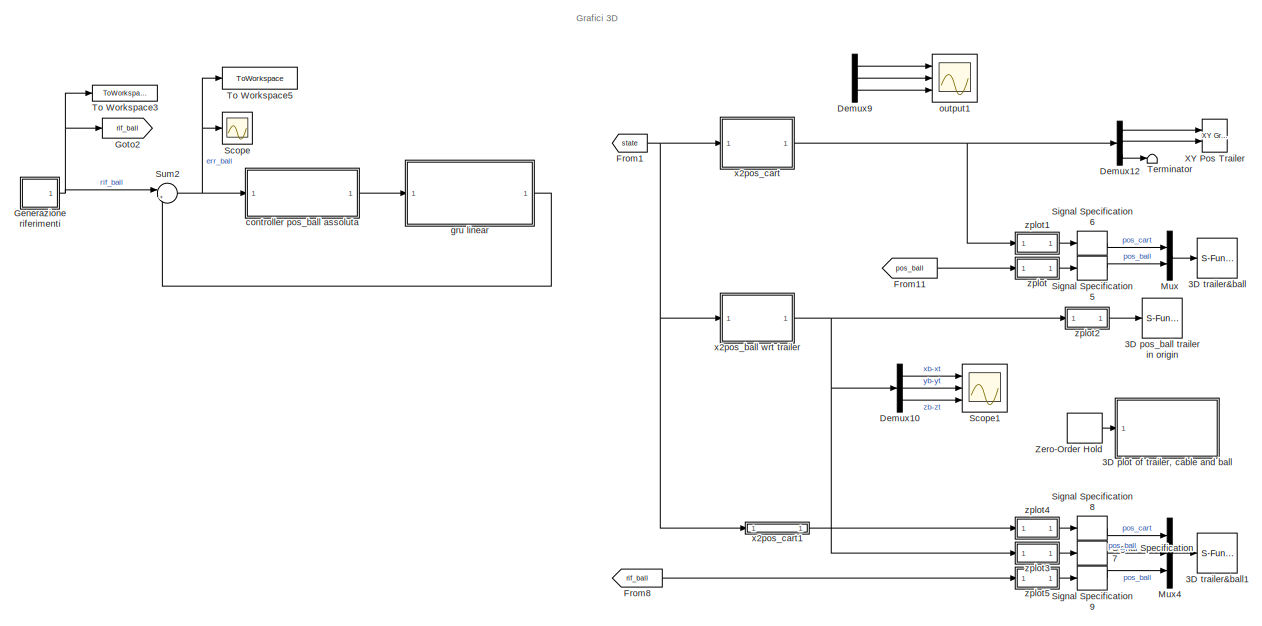
[diagram: root canvas - part 1/2, left side, full height]
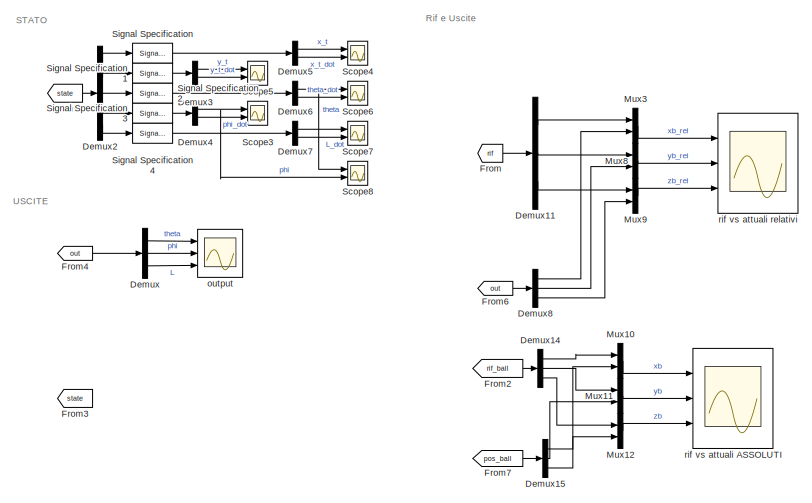
[diagram: root canvas - part 2/2, right side, full height]
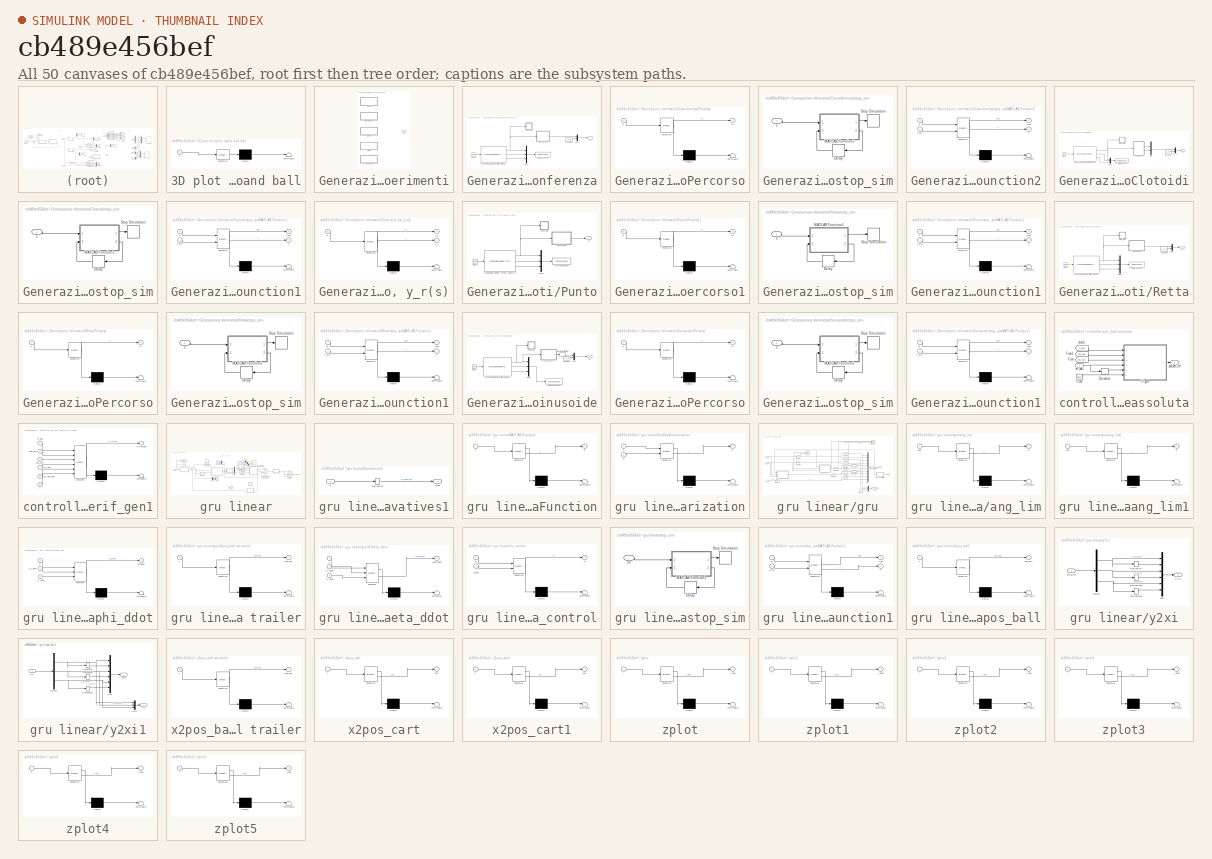
[diagram: thumbnail index - all 50 canvases of the model, root first then tree order]
MODEL slx_cb489e456bef
KIND model
CONFIG AbsTol = auto
CONFIG EnableMultiTasking = off
CONFIG FixedStep = 0.001
CONFIG InitFcn = init_gru
CONFIG MaxStep = 0.01
CONFIG MinStep = auto
CONFIG RelTol = 1e-3
CONFIG SampleTimeConstraint = Unconstrained
CONFIG Solver = FixedStepAuto
CONFIG SolverName = FixedStepAuto
CONFIG StartTime = 0.0
CONFIG StopFcn = stop_gru
CONFIG StopTime = Inf
BLOCK [SubSystem] 3D plot of trailer, cable and ball
  Commented = on
  ErrorFcn = Stateflow.Translate.translate
  PermitHierarchicalResolution = ExplicitOnly
  Ports = [1]
  RequestExecContextInheritance = off
  SFBlockType = MATLAB Function
  TreatAsAtomicUnit = on
BLOCK [Demux] 3D plot of trailer, cable and ball/ Demux 
  Outputs = 1
  Ports = [1, 1]
BLOCK [S-Function] 3D plot of trailer, cable and ball/ SFunction 
  EnableBusSupport = on
  FunctionName = sf_sfun
  Parameters = z_t
  PortCounts = [1 1]
  Ports = [1, 1]
  SFcnIsStateOwnerBlock = off
  SFunctionDeploymentMode = off
  Tag = Stateflow S-Function 22
BLOCK [Terminator] 3D plot of trailer, cable and ball/ Terminator 
BLOCK [Inport] 3D plot of trailer, cable and ball/x
BLOCK [S-Function] 3D pos_ball trailer in origin
  CopyFcn = if exist('sfun3d','file'), sfun3d([],[],[],'CopyBlock'); end
  DeleteFcn = if exist('sfun3d','file'), sfun3d([],[],[],'DeleteBlock'); end
  EnableBusSupport = off
  FunctionName = sfun3d
  LoadFcn = if exist('sfun3d','file'), sfun3d([],[],[],'LoadBlock'); end
  NameChangeFcn = if exist('sfun3d','file'), sfun3d([],[],[],'NameChange'); end
  Parameters = ax,T,np,cp,gd,ls,mk,mx,hd,tb
  Ports = [1]
  SFcnIsStateOwnerBlock = off
  SFunctionDeploymentMode = off
BLOCK [S-Function] 3D trailer&ball
  CopyFcn = if exist('sfun3d','file'), sfun3d([],[],[],'CopyBlock'); end
  DeleteFcn = if exist('sfun3d','file'), sfun3d([],[],[],'DeleteBlock'); end
  EnableBusSupport = off
  FunctionName = sfun3d
  LoadFcn = if exist('sfun3d','file'), sfun3d([],[],[],'LoadBlock'); end
  NameChangeFcn = if exist('sfun3d','file'), sfun3d([],[],[],'NameChange'); end
  Parameters = ax,T,np,cp,gd,ls,mk,mx,hd,tb
  Ports = [1]
  SFcnIsStateOwnerBlock = off
  SFunctionDeploymentMode = off
BLOCK [S-Function] 3D trailer&ball1
  CopyFcn = if exist('sfun3d','file'), sfun3d([],[],[],'CopyBlock'); end
  DeleteFcn = if exist('sfun3d','file'), sfun3d([],[],[],'DeleteBlock'); end
  EnableBusSupport = off
  FunctionName = sfun3d
  LoadFcn = if exist('sfun3d','file'), sfun3d([],[],[],'LoadBlock'); end
  NameChangeFcn = if exist('sfun3d','file'), sfun3d([],[],[],'NameChange'); end
  Parameters = ax,T,np,cp,gd,ls,mk,mx,hd,tb
  Ports = [1]
  SFcnIsStateOwnerBlock = off
  SFunctionDeploymentMode = off
BLOCK [Demux] Demux
  Outputs = 3
  Ports = [1, 3]
BLOCK [Demux] Demux10
  Outputs = 3
  Ports = [1, 3]
BLOCK [Demux] Demux11
  Outputs = 3
  Ports = [1, 3]
BLOCK [Demux] Demux12
  Outputs = 3
  Ports = [1, 3]
BLOCK [Demux] Demux14
  Outputs = 3
  Ports = [1, 3]
BLOCK [Demux] Demux15
  Outputs = 3
  Ports = [1, 3]
BLOCK [Demux] Demux2
  Outputs = 5
  Ports = [1, 5]
BLOCK [Demux] Demux3
  Outputs = 2
  Ports = [1, 2]
BLOCK [Demux] Demux4
  Outputs = 2
  Ports = [1, 2]
BLOCK [Demux] Demux5
  Outputs = 2
  Ports = [1, 2]
BLOCK [Demux] Demux6
  Outputs = 2
  Ports = [1, 2]
BLOCK [Demux] Demux7
  Outputs = 2
  Ports = [1, 2]
BLOCK [Demux] Demux8
  Outputs = 3
  Ports = [1, 3]
BLOCK [Demux] Demux9
  Outputs = 3
  Ports = [1, 3]
BLOCK [From] From
  GotoTag = rif
  TagVisibility = global
BLOCK [From] From1
  GotoTag = state
  TagVisibility = global
BLOCK [From] From11
  GotoTag = pos_ball
  TagVisibility = global
BLOCK [From] From2
  GotoTag = rif_ball
  TagVisibility = global
BLOCK [From] From3
  GotoTag = state
  TagVisibility = global
BLOCK [From] From4
  GotoTag = out
  TagVisibility = global
BLOCK [From] From5
  GotoTag = state
  TagVisibility = global
BLOCK [From] From6
  GotoTag = out
  TagVisibility = global
BLOCK [From] From7
  GotoTag = pos_ball
  TagVisibility = global
BLOCK [From] From8
  GotoTag = rif_ball
  TagVisibility = global
BLOCK [SubSystem] Generazione riferimenti
  Ports = [0, 1]
  RequestExecContextInheritance = off
  Variant = on
BLOCK [SubSystem] Generazione riferimenti/Circonferenza
  Ports = [0, 1]
  RequestExecContextInheritance = off
  VariantControl = Circonferenza
BLOCK [Clock] Generazione riferimenti/Circonferenza/Clock2
BLOCK [Constant] Generazione riferimenti/Circonferenza/Constant4
  Value = z_b_rif
BLOCK [Mux] Generazione riferimenti/Circonferenza/Mux1
  DisplayOption = bar
  Inputs = 2
  Ports = [2, 1]
BLOCK [Mux] Generazione riferimenti/Circonferenza/Mux2
  DisplayOption = bar
  Inputs = 3
  Ports = [3, 1]
BLOCK [SubSystem] Generazione riferimenti/Circonferenza/Percorso
  ErrorFcn = Stateflow.Translate.translate
  PermitHierarchicalResolution = ExplicitOnly
  Ports = [1, 1]
  RequestExecContextInheritance = off
  SFBlockType = MATLAB Function
  TreatAsAtomicUnit = on
BLOCK [Demux] Generazione riferimenti/Circonferenza/Percorso/ Demux 
  Outputs = 1
  Ports = [1, 1]
BLOCK [S-Function] Generazione riferimenti/Circonferenza/Percorso/ SFunction 
  EnableBusSupport = on
  FunctionName = sf_sfun
  Parameters = centro,v_r
  PortCounts = [1 2]
  Ports = [1, 2]
  SFcnIsStateOwnerBlock = off
  SFunctionDeploymentMode = off
  Tag = Stateflow S-Function 10
BLOCK [Terminator] Generazione riferimenti/Circonferenza/Percorso/ Terminator 
BLOCK [Outport] Generazione riferimenti/Circonferenza/Percorso/rif
BLOCK [Inport] Generazione riferimenti/Circonferenza/Percorso/s
BLOCK [ToWorkspace] Generazione riferimenti/Circonferenza/To Workspace2
  FixptAsFi = on
  MaxDataPoints = inf
  Ports = [1]
  SampleTime = -1
  SaveFormat = Timeseries
  VariableName = curv_coord
BLOCK [Reference] Generazione riferimenti/Circonferenza/Trapezoidal Velocity Profile Trajectory  REF=robotcorelib/Trapezoidal Velocity Profile Trajectory
  Ports = [1, 3]
  SourceBlock = robotcorelib/Trapezoidal Velocity Profile Trajectory
  SourceProductBaseCode = NV,RO,RR
  SourceType = robotics.slcore.internal.block.TrapVelTrajSys
BLOCK [Outport] Generazione riferimenti/Circonferenza/rif
BLOCK [SubSystem] Generazione riferimenti/Circonferenza/stop_sim
  Ports = [1]
  RequestExecContextInheritance = off
BLOCK [Delay] Generazione riferimenti/Circonferenza/stop_sim/Delay
  DelayLength = 1
  InputPortMap = u0
  Ports = [1, 1]
BLOCK [SubSystem] Generazione riferimenti/Circonferenza/stop_sim/MATLAB Function2
  ErrorFcn = Stateflow.Translate.translate
  PermitHierarchicalResolution = ExplicitOnly
  Ports = [2, 2]
  RequestExecContextInheritance = off
  SFBlockType = MATLAB Function
  TreatAsAtomicUnit = on
BLOCK [Demux] Generazione riferimenti/Circonferenza/stop_sim/MATLAB Function2/ Demux 
  Outputs = 1
  Ports = [1, 1]
BLOCK [S-Function] Generazione riferimenti/Circonferenza/stop_sim/MATLAB Function2/ SFunction 
  EnableBusSupport = on
  FunctionName = sf_sfun
  Parameters = s_finale,threshold
  PortCounts = [2 3]
  Ports = [2, 3]
  SFcnIsStateOwnerBlock = off
  SFunctionDeploymentMode = off
  Tag = Stateflow S-Function 9
BLOCK [Terminator] Generazione riferimenti/Circonferenza/stop_sim/MATLAB Function2/ Terminator 
BLOCK [Outport] Generazione riferimenti/Circonferenza/stop_sim/MATLAB Function2/flag
BLOCK [Outport] Generazione riferimenti/Circonferenza/stop_sim/MATLAB Function2/n
  Port = 2
BLOCK [Inport] Generazione riferimenti/Circonferenza/stop_sim/MATLAB Function2/n_old
  Port = 2
BLOCK [Inport] Generazione riferimenti/Circonferenza/stop_sim/MATLAB Function2/s
BLOCK [Stop] Generazione riferimenti/Circonferenza/stop_sim/Stop Simulation
BLOCK [Inport] Generazione riferimenti/Circonferenza/stop_sim/s
BLOCK [SubSystem] Generazione riferimenti/Clotoidi
  Ports = [0, 1]
  RequestExecContextInheritance = off
  VariantControl = Clotoidi
BLOCK [Clock] Generazione riferimenti/Clotoidi/Clock
BLOCK [Constant] Generazione riferimenti/Clotoidi/Constant4
  Value = z_b_rif
BLOCK [Mux] Generazione riferimenti/Clotoidi/Mux
  DisplayOption = bar
  Inputs = 2
  Ports = [2, 1]
BLOCK [Mux] Generazione riferimenti/Clotoidi/Mux1
  DisplayOption = bar
  Inputs = 3
  Ports = [3, 1]
BLOCK [Mux] Generazione riferimenti/Clotoidi/Mux2
  DisplayOption = bar
  Inputs = 2
  Ports = [2, 1]
BLOCK [ToWorkspace] Generazione riferimenti/Clotoidi/To Workspace3
  FixptAsFi = on
  MaxDataPoints = inf
  Ports = [1]
  SampleTime = -1
  SaveFormat = Timeseries
  VariableName = curv_coord
BLOCK [Reference] Generazione riferimenti/Clotoidi/Trapezoidal Velocity Profile Trajectory  REF=robotcorelib/Trapezoidal Velocity Profile Trajectory
  Ports = [1, 3]
  SourceBlock = robotcorelib/Trapezoidal Velocity Profile Trajectory
  SourceProductBaseCode = NV,RO,RR
  SourceType = robotics.slcore.internal.block.TrapVelTrajSys
BLOCK [Outport] Generazione riferimenti/Clotoidi/rif
BLOCK [SubSystem] Generazione riferimenti/Clotoidi/stop_sim
  Ports = [1]
  RequestExecContextInheritance = off
BLOCK [Delay] Generazione riferimenti/Clotoidi/stop_sim/Delay
  DelayLength = 1
  InputPortMap = u0
  Ports = [1, 1]
BLOCK [SubSystem] Generazione riferimenti/Clotoidi/stop_sim/MATLAB Function1
  ErrorFcn = Stateflow.Translate.translate
  PermitHierarchicalResolution = ExplicitOnly
  Ports = [2, 2]
  RequestExecContextInheritance = off
  SFBlockType = MATLAB Function
  TreatAsAtomicUnit = on
BLOCK [Demux] Generazione riferimenti/Clotoidi/stop_sim/MATLAB Function1/ Demux 
  Outputs = 1
  Ports = [1, 1]
BLOCK [S-Function] Generazione riferimenti/Clotoidi/stop_sim/MATLAB Function1/ SFunction 
  EnableBusSupport = on
  FunctionName = sf_sfun
  Parameters = s_finale,threshold
  PortCounts = [2 3]
  Ports = [2, 3]
  SFcnIsStateOwnerBlock = off
  SFunctionDeploymentMode = off
  Tag = Stateflow S-Function 3
BLOCK [Terminator] Generazione riferimenti/Clotoidi/stop_sim/MATLAB Function1/ Terminator 
BLOCK [Outport] Generazione riferimenti/Clotoidi/stop_sim/MATLAB Function1/flag
BLOCK [Outport] Generazione riferimenti/Clotoidi/stop_sim/MATLAB Function1/n
  Port = 2
BLOCK [Inport] Generazione riferimenti/Clotoidi/stop_sim/MATLAB Function1/n_old
  Port = 2
BLOCK [Inport] Generazione riferimenti/Clotoidi/stop_sim/MATLAB Function1/s
BLOCK [Stop] Generazione riferimenti/Clotoidi/stop_sim/Stop Simulation
BLOCK [Inport] Generazione riferimenti/Clotoidi/stop_sim/s
BLOCK [SubSystem] Generazione riferimenti/Clotoidi/x_r(s), y_r(s)
  ErrorFcn = Stateflow.Translate.translate
  PermitHierarchicalResolution = ExplicitOnly
  Ports = [1, 2]
  RequestExecContextInheritance = off
  SFBlockType = MATLAB Function
  TreatAsAtomicUnit = on
BLOCK [Demux] Generazione riferimenti/Clotoidi/x_r(s), y_r(s)/ Demux 
  Outputs = 1
  Ports = [1, 1]
BLOCK [S-Function] Generazione riferimenti/Clotoidi/x_r(s), y_r(s)/ SFunction 
  EnableBusSupport = on
  FunctionName = sf_sfun
  Parameters = Lsofar,Lsofarclot,Ltot,indexclot,n_p,theta_rette,xp,yp
  PortCounts = [1 3]
  Ports = [1, 3]
  SFcnIsStateOwnerBlock = off
  SFunctionDeploymentMode = off
  Tag = Stateflow S-Function 13
BLOCK [Terminator] Generazione riferimenti/Clotoidi/x_r(s), y_r(s)/ Terminator 
BLOCK [Inport] Generazione riferimenti/Clotoidi/x_r(s), y_r(s)/s
BLOCK [Outport] Generazione riferimenti/Clotoidi/x_r(s), y_r(s)/x_r
  VectorParamsAs1DForOutWhenUnconnected = off
BLOCK [Outport] Generazione riferimenti/Clotoidi/x_r(s), y_r(s)/y_r
  Port = 2
  VectorParamsAs1DForOutWhenUnconnected = off
BLOCK [SubSystem] Generazione riferimenti/Punto
  Ports = [0, 1]
  RequestExecContextInheritance = off
  VariantControl = Punto
BLOCK [Clock] Generazione riferimenti/Punto/Clock2
BLOCK [Mux] Generazione riferimenti/Punto/Mux1
  DisplayOption = bar
  Inputs = 3
  Ports = [3, 1]
BLOCK [SubSystem] Generazione riferimenti/Punto/Percorso1
  ErrorFcn = Stateflow.Translate.translate
  PermitHierarchicalResolution = ExplicitOnly
  Ports = [1, 1]
  RequestExecContextInheritance = off
  SFBlockType = MATLAB Function
  TreatAsAtomicUnit = on
BLOCK [Demux] Generazione riferimenti/Punto/Percorso1/ Demux 
  Outputs = 1
  Ports = [1, 1]
BLOCK [S-Function] Generazione riferimenti/Punto/Percorso1/ SFunction 
  EnableBusSupport = on
  FunctionName = sf_sfun
  Parameters = dir_retta,x_b_iniziale,y_b_iniziale,z_b_iniziale
  PortCounts = [1 2]
  Ports = [1, 2]
  SFcnIsStateOwnerBlock = off
  SFunctionDeploymentMode = off
  Tag = Stateflow S-Function 28
BLOCK [Terminator] Generazione riferimenti/Punto/Percorso1/ Terminator 
BLOCK [Outport] Generazione riferimenti/Punto/Percorso1/rif
BLOCK [Inport] Generazione riferimenti/Punto/Percorso1/s
BLOCK [ToWorkspace] Generazione riferimenti/Punto/To Workspace2
  FixptAsFi = on
  MaxDataPoints = inf
  Ports = [1]
  SampleTime = -1
  SaveFormat = Timeseries
  VariableName = curv_coord1
BLOCK [Reference] Generazione riferimenti/Punto/Trapezoidal Velocity Profile Trajectory  REF=robotcorelib/Trapezoidal Velocity Profile Trajectory
  Ports = [1, 3]
  SourceBlock = robotcorelib/Trapezoidal Velocity Profile Trajectory
  SourceProductBaseCode = NV,RO,RR
  SourceType = robotics.slcore.internal.block.TrapVelTrajSys
BLOCK [Outport] Generazione riferimenti/Punto/rif
BLOCK [SubSystem] Generazione riferimenti/Punto/stop_sim
  Ports = [1]
  RequestExecContextInheritance = off
BLOCK [Delay] Generazione riferimenti/Punto/stop_sim/Delay
  DelayLength = 1
  InputPortMap = u0
  Ports = [1, 1]
BLOCK [SubSystem] Generazione riferimenti/Punto/stop_sim/MATLAB Function1
  ErrorFcn = Stateflow.Translate.translate
  PermitHierarchicalResolution = ExplicitOnly
  Ports = [2, 2]
  RequestExecContextInheritance = off
  SFBlockType = MATLAB Function
  TreatAsAtomicUnit = on
BLOCK [Demux] Generazione riferimenti/Punto/stop_sim/MATLAB Function1/ Demux 
  Outputs = 1
  Ports = [1, 1]
BLOCK [S-Function] Generazione riferimenti/Punto/stop_sim/MATLAB Function1/ SFunction 
  EnableBusSupport = on
  FunctionName = sf_sfun
  Parameters = s_finale,threshold
  PortCounts = [2 3]
  Ports = [2, 3]
  SFcnIsStateOwnerBlock = off
  SFunctionDeploymentMode = off
  Tag = Stateflow S-Function 7
BLOCK [Terminator] Generazione riferimenti/Punto/stop_sim/MATLAB Function1/ Terminator 
BLOCK [Outport] Generazione riferimenti/Punto/stop_sim/MATLAB Function1/flag
BLOCK [Outport] Generazione riferimenti/Punto/stop_sim/MATLAB Function1/n
  Port = 2
BLOCK [Inport] Generazione riferimenti/Punto/stop_sim/MATLAB Function1/n_old
  Port = 2
BLOCK [Inport] Generazione riferimenti/Punto/stop_sim/MATLAB Function1/s
BLOCK [Stop] Generazione riferimenti/Punto/stop_sim/Stop Simulation
BLOCK [Inport] Generazione riferimenti/Punto/stop_sim/s
BLOCK [SubSystem] Generazione riferimenti/Retta
  Ports = [0, 1]
  RequestExecContextInheritance = off
  VariantControl = Retta
BLOCK [Clock] Generazione riferimenti/Retta/Clock1
BLOCK [Constant] Generazione riferimenti/Retta/Constant4
  Value = z_b_rif
BLOCK [Mux] Generazione riferimenti/Retta/Mux
  DisplayOption = bar
  Inputs = 2
  Ports = [2, 1]
BLOCK [Mux] Generazione riferimenti/Retta/Mux2
  DisplayOption = bar
  Inputs = 3
  Ports = [3, 1]
BLOCK [SubSystem] Generazione riferimenti/Retta/Percorso
  ErrorFcn = Stateflow.Translate.translate
  PermitHierarchicalResolution = ExplicitOnly
  Ports = [1, 1]
  RequestExecContextInheritance = off
  SFBlockType = MATLAB Function
  TreatAsAtomicUnit = on
BLOCK [Demux] Generazione riferimenti/Retta/Percorso/ Demux 
  Outputs = 1
  Ports = [1, 1]
BLOCK [S-Function] Generazione riferimenti/Retta/Percorso/ SFunction 
  EnableBusSupport = on
  FunctionName = sf_sfun
  Parameters = dir_retta,x_b_iniziale,y_b_iniziale
  PortCounts = [1 2]
  Ports = [1, 2]
  SFcnIsStateOwnerBlock = off
  SFunctionDeploymentMode = off
  Tag = Stateflow S-Function 12
BLOCK [Terminator] Generazione riferimenti/Retta/Percorso/ Terminator 
BLOCK [Outport] Generazione riferimenti/Retta/Percorso/rif
BLOCK [Inport] Generazione riferimenti/Retta/Percorso/s
BLOCK [ToWorkspace] Generazione riferimenti/Retta/To Workspace1
  FixptAsFi = on
  MaxDataPoints = inf
  Ports = [1]
  SampleTime = -1
  SaveFormat = Timeseries
  VariableName = curv_coord
BLOCK [Reference] Generazione riferimenti/Retta/Trapezoidal Velocity Profile Trajectory  REF=robotcorelib/Trapezoidal Velocity Profile Trajectory
  Ports = [1, 3]
  SourceBlock = robotcorelib/Trapezoidal Velocity Profile Trajectory
  SourceProductBaseCode = NV,RO,RR
  SourceType = robotics.slcore.internal.block.TrapVelTrajSys
BLOCK [Outport] Generazione riferimenti/Retta/rif
BLOCK [SubSystem] Generazione riferimenti/Retta/stop_sim
  Ports = [1]
  RequestExecContextInheritance = off
BLOCK [Delay] Generazione riferimenti/Retta/stop_sim/Delay
  DelayLength = 1
  InputPortMap = u0
  Ports = [1, 1]
BLOCK [SubSystem] Generazione riferimenti/Retta/stop_sim/MATLAB Function1
  ErrorFcn = Stateflow.Translate.translate
  PermitHierarchicalResolution = ExplicitOnly
  Ports = [2, 2]
  RequestExecContextInheritance = off
  SFBlockType = MATLAB Function
  TreatAsAtomicUnit = on
BLOCK [Demux] Generazione riferimenti/Retta/stop_sim/MATLAB Function1/ Demux 
  Outputs = 1
  Ports = [1, 1]
BLOCK [S-Function] Generazione riferimenti/Retta/stop_sim/MATLAB Function1/ SFunction 
  EnableBusSupport = on
  FunctionName = sf_sfun
  Parameters = s_finale,threshold
  PortCounts = [2 3]
  Ports = [2, 3]
  SFcnIsStateOwnerBlock = off
  SFunctionDeploymentMode = off
  Tag = Stateflow S-Function 14
BLOCK [Terminator] Generazione riferimenti/Retta/stop_sim/MATLAB Function1/ Terminator 
BLOCK [Outport] Generazione riferimenti/Retta/stop_sim/MATLAB Function1/flag
BLOCK [Outport] Generazione riferimenti/Retta/stop_sim/MATLAB Function1/n
  Port = 2
BLOCK [Inport] Generazione riferimenti/Retta/stop_sim/MATLAB Function1/n_old
  Port = 2
BLOCK [Inport] Generazione riferimenti/Retta/stop_sim/MATLAB Function1/s
BLOCK [Stop] Generazione riferimenti/Retta/stop_sim/Stop Simulation
BLOCK [Inport] Generazione riferimenti/Retta/stop_sim/s
BLOCK [SubSystem] Generazione riferimenti/Sinusoide
  Ports = [0, 1]
  RequestExecContextInheritance = off
  VariantControl = Sinusoide
BLOCK [Clock] Generazione riferimenti/Sinusoide/Clock1
BLOCK [Constant] Generazione riferimenti/Sinusoide/Constant
  Value = z_b_rif
BLOCK [Mux] Generazione riferimenti/Sinusoide/Mux
  DisplayOption = bar
  Inputs = 2
  Ports = [2, 1]
BLOCK [Mux] Generazione riferimenti/Sinusoide/Mux1
  DisplayOption = bar
  Inputs = 3
  Ports = [3, 1]
BLOCK [SubSystem] Generazione riferimenti/Sinusoide/Percorso
  ErrorFcn = Stateflow.Translate.translate
  PermitHierarchicalResolution = ExplicitOnly
  Ports = [1, 1]
  RequestExecContextInheritance = off
  SFBlockType = MATLAB Function
  TreatAsAtomicUnit = on
BLOCK [Demux] Generazione riferimenti/Sinusoide/Percorso/ Demux 
  Outputs = 1
  Ports = [1, 1]
BLOCK [S-Function] Generazione riferimenti/Sinusoide/Percorso/ SFunction 
  EnableBusSupport = on
  FunctionName = sf_sfun
  Parameters = dir_retta
  PortCounts = [1 2]
  Ports = [1, 2]
  SFcnIsStateOwnerBlock = off
  SFunctionDeploymentMode = off
  Tag = Stateflow S-Function 15
BLOCK [Terminator] Generazione riferimenti/Sinusoide/Percorso/ Terminator 
BLOCK [Outport] Generazione riferimenti/Sinusoide/Percorso/rif
BLOCK [Inport] Generazione riferimenti/Sinusoide/Percorso/s
BLOCK [SignalSpecification] Generazione riferimenti/Sinusoide/Signal Specification
  Dimensions = 2
BLOCK [ToWorkspace] Generazione riferimenti/Sinusoide/To Workspace1
  FixptAsFi = on
  MaxDataPoints = inf
  Ports = [1]
  SampleTime = -1
  SaveFormat = Timeseries
  VariableName = curv_coord
BLOCK [Reference] Generazione riferimenti/Sinusoide/Trapezoidal Velocity Profile Trajectory  REF=robotcorelib/Trapezoidal Velocity Profile Trajectory
  Ports = [1, 3]
  SourceBlock = robotcorelib/Trapezoidal Velocity Profile Trajectory
  SourceProductBaseCode = NV,RO,RR
  SourceType = robotics.slcore.internal.block.TrapVelTrajSys
BLOCK [Outport] Generazione riferimenti/Sinusoide/rif
BLOCK [SubSystem] Generazione riferimenti/Sinusoide/stop_sim
  Ports = [1]
  RequestExecContextInheritance = off
BLOCK [Delay] Generazione riferimenti/Sinusoide/stop_sim/Delay
  DelayLength = 1
  InputPortMap = u0
  Ports = [1, 1]
BLOCK [SubSystem] Generazione riferimenti/Sinusoide/stop_sim/MATLAB Function1
  ErrorFcn = Stateflow.Translate.translate
  PermitHierarchicalResolution = ExplicitOnly
  Ports = [2, 2]
  RequestExecContextInheritance = off
  SFBlockType = MATLAB Function
  TreatAsAtomicUnit = on
BLOCK [Demux] Generazione riferimenti/Sinusoide/stop_sim/MATLAB Function1/ Demux 
  Outputs = 1
  Ports = [1, 1]
BLOCK [S-Function] Generazione riferimenti/Sinusoide/stop_sim/MATLAB Function1/ SFunction 
  EnableBusSupport = on
  FunctionName = sf_sfun
  Parameters = s_finale,threshold
  PortCounts = [2 3]
  Ports = [2, 3]
  SFcnIsStateOwnerBlock = off
  SFunctionDeploymentMode = off
  Tag = Stateflow S-Function 6
BLOCK [Terminator] Generazione riferimenti/Sinusoide/stop_sim/MATLAB Function1/ Terminator 
BLOCK [Outport] Generazione riferimenti/Sinusoide/stop_sim/MATLAB Function1/flag
BLOCK [Outport] Generazione riferimenti/Sinusoide/stop_sim/MATLAB Function1/n
  Port = 2
BLOCK [Inport] Generazione riferimenti/Sinusoide/stop_sim/MATLAB Function1/n_old
  Port = 2
BLOCK [Inport] Generazione riferimenti/Sinusoide/stop_sim/MATLAB Function1/s
BLOCK [Stop] Generazione riferimenti/Sinusoide/stop_sim/Stop Simulation
BLOCK [Inport] Generazione riferimenti/Sinusoide/stop_sim/s
BLOCK [Outport] Generazione riferimenti/rif
BLOCK [Goto] Goto2
  GotoTag = rif_ball
  TagVisibility = global
BLOCK [Mux] Mux
  DisplayOption = bar
  Inputs = 2
  Ports = [2, 1]
BLOCK [Mux] Mux10
  DisplayOption = bar
  Inputs = 2
  Ports = [2, 1]
BLOCK [Mux] Mux11
  DisplayOption = bar
  Inputs = 2
  Ports = [2, 1]
BLOCK [Mux] Mux12
  DisplayOption = bar
  Inputs = 2
  Ports = [2, 1]
BLOCK [Mux] Mux3
  DisplayOption = bar
  Inputs = 2
  Ports = [2, 1]
BLOCK [Mux] Mux4
  DisplayOption = bar
  Inputs = 3
  Ports = [3, 1]
BLOCK [Mux] Mux8
  DisplayOption = bar
  Inputs = 2
  Ports = [2, 1]
BLOCK [Mux] Mux9
  DisplayOption = bar
  Inputs = 2
  Ports = [2, 1]
BLOCK [Scope] Scope
  Floating = off
  NumInputPorts = 1
  Ports = [1]
  ScopeSpecificationString = Simulink.scopes.TimeScopeBlockCfg('CurrentConfiguration', extmgr.ConfigurationSet(extmgr.Configuration('Core','General UI',true),extmgr.Configuration('Core','Source UI',true),extmgr.Configuration('Sources','WiredSimulink',true,'DataLoggingVariableName','ScopeData1'),extmgr.Configuration('Visuals','Time Domain',true,'SerializedDisplays',{struct('MinYLimReal','-0.16818','MaxYLimReal','0.1378','YLabe...<+1465ch>
BLOCK [Scope] Scope1
  Floating = off
  NumInputPorts = 3
  Ports = [3]
  ScopeSpecificationString = Simulink.scopes.TimeScopeBlockCfg('CurrentConfiguration', extmgr.ConfigurationSet(extmgr.Configuration('Core','General UI',true),extmgr.Configuration('Core','Source UI',true),extmgr.Configuration('Sources','WiredSimulink',true,'DataLoggingVariableName','ScopeData4'),extmgr.Configuration('Visuals','Time Domain',true,'SerializedDisplays',{struct('MinYLimReal','-0.58804','MaxYLimReal','5.29406','YLab...<+1449ch>
BLOCK [Scope] Scope3
  Floating = off
  NumInputPorts = 2
  Ports = [2]
  ScopeSpecificationString = Simulink.scopes.TimeScopeBlockCfg('CurrentConfiguration', extmgr.ConfigurationSet(extmgr.Configuration('Core','General UI',true),extmgr.Configuration('Core','Source UI',true),extmgr.Configuration('Sources','WiredSimulink',true,'DataLoggingVariableName','ScopeData2'),extmgr.Configuration('Visuals','Time Domain',true,'SerializedDisplays',{struct('MinYLimReal','-11.09172','MaxYLimReal','5.72953','YLa...<+1420ch>
BLOCK [Scope] Scope4
  Floating = off
  NumInputPorts = 2
  Ports = [2]
  ScopeSpecificationString = Simulink.scopes.TimeScopeBlockCfg('CurrentConfiguration', extmgr.ConfigurationSet(extmgr.Configuration('Core','General UI',true),extmgr.Configuration('Core','Source UI',true),extmgr.Configuration('Sources','WiredSimulink',true,'DataLoggingVariableName','ScopeData3'),extmgr.Configuration('Visuals','Time Domain',true,'SerializedDisplays',{struct('MinYLimReal','-1.00000','MaxYLimReal','1.00000','YLab...<+1516ch>
BLOCK [Scope] Scope5
  Floating = off
  NumInputPorts = 2
  Ports = [2]
  ScopeSpecificationString = Simulink.scopes.TimeScopeBlockCfg('CurrentConfiguration', extmgr.ConfigurationSet(extmgr.Configuration('Core','General UI',true),extmgr.Configuration('Core','Source UI',true),extmgr.Configuration('Sources','WiredSimulink',true,'DataLoggingVariableName','ScopeData5'),extmgr.Configuration('Visuals','Time Domain',true,'SerializedDisplays',{struct('MinYLimReal','-29915950866616051687269335040.00000','...<+1617ch>
BLOCK [Scope] Scope6
  Floating = off
  NumInputPorts = 2
  Ports = [2]
  ScopeSpecificationString = Simulink.scopes.TimeScopeBlockCfg('CurrentConfiguration', extmgr.ConfigurationSet(extmgr.Configuration('Core','General UI',true),extmgr.Configuration('Core','Source UI',true),extmgr.Configuration('Sources','WiredSimulink',true,'DataLoggingVariableName','ScopeData4'),extmgr.Configuration('Visuals','Time Domain',true,'SerializedDisplays',{struct('MinYLimReal','-0.03186','MaxYLimReal','0.53635','YLab...<+1449ch>
BLOCK [Scope] Scope7
  Floating = off
  NumInputPorts = 2
  Ports = [2]
  ScopeSpecificationString = Simulink.scopes.TimeScopeBlockCfg('CurrentConfiguration', extmgr.ConfigurationSet(extmgr.Configuration('Core','General UI',true),extmgr.Configuration('Core','Source UI',true),extmgr.Configuration('Sources','WiredSimulink',true,'DataLoggingVariableName','ScopeData6'),extmgr.Configuration('Visuals','Time Domain',true,'SerializedDisplays',{struct('MinYLimReal','-0.25','MaxYLimReal','2.25','YLabelReal...<+1431ch>
BLOCK [Scope] Scope8
  Floating = off
  NumInputPorts = 2
  Ports = [2]
  ScopeSpecificationString = Simulink.scopes.TimeScopeBlockCfg('CurrentConfiguration', extmgr.ConfigurationSet(extmgr.Configuration('Core','General UI',true),extmgr.Configuration('Core','Source UI',true),extmgr.Configuration('Sources','WiredSimulink',true,'DataLoggingVariableName','ScopeData3'),extmgr.Configuration('Visuals','Time Domain',true,'SerializedDisplays',{struct('MinYLimReal','-0.59319','MaxYLimReal','0.69974','YLab...<+1441ch>
BLOCK [SignalSpecification] Signal Specification
  Dimensions = [2]
BLOCK [SignalSpecification] Signal Specification1
  Dimensions = [2]
BLOCK [SignalSpecification] Signal Specification2
  Dimensions = [2]
BLOCK [SignalSpecification] Signal Specification3
  Dimensions = [2]
BLOCK [SignalSpecification] Signal Specification4
  Dimensions = [2]
BLOCK [SignalSpecification] Signal Specification5
  Dimensions = 3
BLOCK [SignalSpecification] Signal Specification6
  Dimensions = 3
BLOCK [SignalSpecification] Signal Specification7
  Dimensions = 3
BLOCK [SignalSpecification] Signal Specification8
  Dimensions = 3
BLOCK [SignalSpecification] Signal Specification9
  Dimensions = 3
BLOCK [Sum] Sum2
  Inputs = |+-
  Ports = [2, 1]
BLOCK [Terminator] Terminator
BLOCK [ToWorkspace] To Workspace3
  FixptAsFi = on
  MaxDataPoints = inf
  Ports = [1]
  SampleTime = -1
  SaveFormat = Timeseries
  VariableName = rif_ball
BLOCK [ToWorkspace] To Workspace5
  FixptAsFi = on
  MaxDataPoints = inf
  Ports = [1]
  SampleTime = -1
  SaveFormat = Timeseries
  VariableName = err_ball
BLOCK [Reference] XY Pos Trailer  REF=simulink/Sinks/XY Graph
  Ports = [2]
  SourceBlock = simulink/Sinks/XY Graph
  SourceProductBaseCode = SL
  SourceType = XY scope.
BLOCK [ZeroOrderHold] Zero-Order Hold
  Commented = on
  SampleTime = 1/10
BLOCK [SubSystem] controller pos_ball assoluta
  Ports = [1, 1]
  RequestExecContextInheritance = off
BLOCK [Clock] controller pos_ball assoluta/Clock
BLOCK [Derivative] controller pos_ball assoluta/Derivative
BLOCK [From] controller pos_ball assoluta/From
  GotoTag = pos_cart
  TagVisibility = global
BLOCK [From] controller pos_ball assoluta/From1
  GotoTag = pos_ball
  TagVisibility = global
BLOCK [Inport] controller pos_ball assoluta/err_ball
BLOCK [Outport] controller pos_ball assoluta/pos_ball_rel
BLOCK [SubSystem] controller pos_ball assoluta/rif_gen1
  ErrorFcn = Stateflow.Translate.translate
  PermitHierarchicalResolution = ExplicitOnly
  Ports = [6, 1]
  RequestExecContextInheritance = off
  SFBlockType = MATLAB Function
  TreatAsAtomicUnit = on
BLOCK [Demux] controller pos_ball assoluta/rif_gen1/ Demux 
  Outputs = 1
  Ports = [1, 1]
BLOCK [S-Function] controller pos_ball assoluta/rif_gen1/ SFunction 
  EnableBusSupport = on
  FunctionName = sf_sfun
  PortCounts = [6 2]
  Ports = [6, 2]
  SFcnIsStateOwnerBlock = off
  SFunctionDeploymentMode = off
  Tag = Stateflow S-Function 32
BLOCK [Terminator] controller pos_ball assoluta/rif_gen1/ Terminator 
BLOCK [Inport] controller pos_ball assoluta/rif_gen1/err_ball
  Port = 4
BLOCK [Inport] controller pos_ball assoluta/rif_gen1/err_dot_ball
  Port = 5
BLOCK [Inport] controller pos_ball assoluta/rif_gen1/pos_ball
  Port = 2
BLOCK [Inport] controller pos_ball assoluta/rif_gen1/pos_cart
  Port = 3
BLOCK [Inport] controller pos_ball assoluta/rif_gen1/rif_ball
BLOCK [Outport] controller pos_ball assoluta/rif_gen1/rif_rel_final
BLOCK [Inport] controller pos_ball assoluta/rif_gen1/t
  Port = 6
BLOCK [From] controller pos_ball assoluta/state1
  GotoTag = rif_ball
  TagVisibility = global
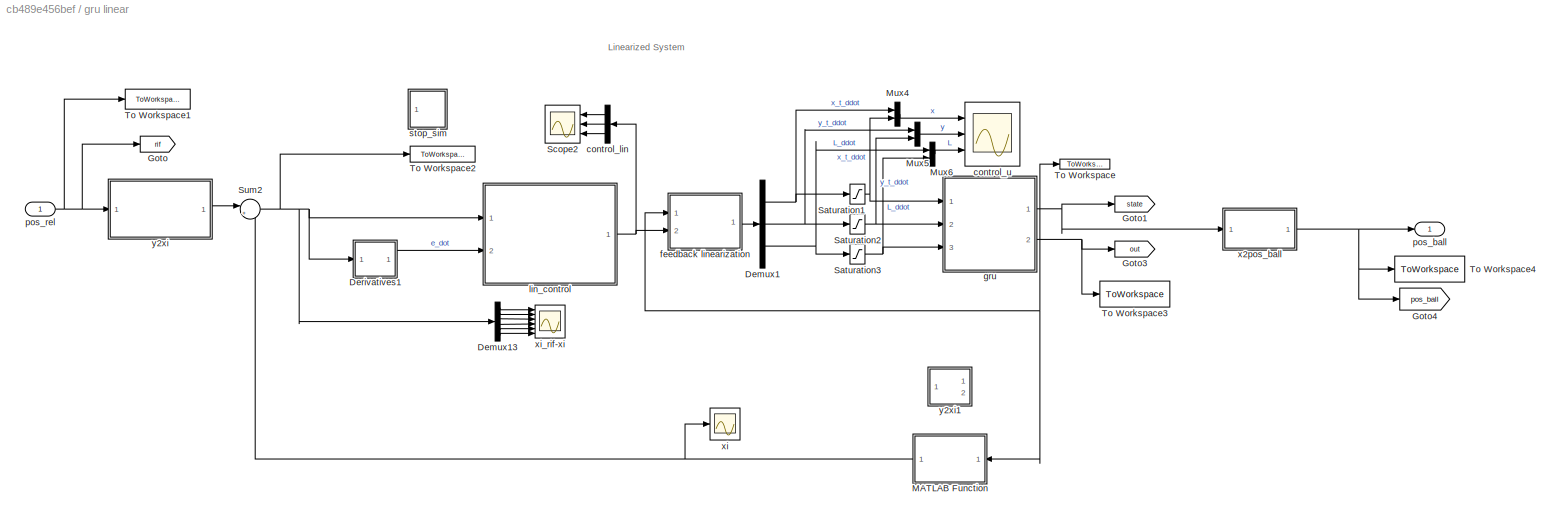
BLOCK [SubSystem] gru linear
  Ports = [1, 1]
  RequestExecContextInheritance = off
BLOCK [Demux] gru linear/Demux1
  Outputs = 3
  Ports = [1, 3]
BLOCK [Demux] gru linear/Demux13
  Outputs = 6
  Ports = [1, 6]
BLOCK [SubSystem] gru linear/Derivatives1
  Ports = [1, 1]
  RequestExecContextInheritance = off
BLOCK [Derivative] gru linear/Derivatives1/Derivative
  CoefficientInTFapproximation = 1e10
BLOCK [Inport] gru linear/Derivatives1/e
BLOCK [Outport] gru linear/Derivatives1/e_dot
BLOCK [Goto] gru linear/Goto
  GotoTag = rif
  TagVisibility = global
BLOCK [Goto] gru linear/Goto1
  GotoTag = state
  TagVisibility = global
BLOCK [Goto] gru linear/Goto3
  GotoTag = out
  TagVisibility = global
BLOCK [Goto] gru linear/Goto4
  GotoTag = pos_ball
  TagVisibility = global
BLOCK [SubSystem] gru linear/MATLAB Function
  ErrorFcn = Stateflow.Translate.translate
  NameLocation = top
  PermitHierarchicalResolution = ExplicitOnly
  Ports = [1, 1]
  RequestExecContextInheritance = off
  SFBlockType = MATLAB Function
  TreatAsAtomicUnit = on
BLOCK [Demux] gru linear/MATLAB Function/ Demux 
  Outputs = 1
  Ports = [1, 1]
BLOCK [S-Function] gru linear/MATLAB Function/ SFunction 
  EnableBusSupport = on
  FunctionName = sf_sfun
  PortCounts = [1 2]
  Ports = [1, 2]
  SFcnIsStateOwnerBlock = off
  SFunctionDeploymentMode = off
  Tag = Stateflow S-Function 26
BLOCK [Terminator] gru linear/MATLAB Function/ Terminator 
BLOCK [Inport] gru linear/MATLAB Function/x
BLOCK [Outport] gru linear/MATLAB Function/xi
BLOCK [Mux] gru linear/Mux4
  DisplayOption = bar
  Inputs = 2
  Ports = [2, 1]
BLOCK [Mux] gru linear/Mux5
  DisplayOption = bar
  Inputs = 2
  Ports = [2, 1]
BLOCK [Mux] gru linear/Mux6
  DisplayOption = bar
  Inputs = 2
  Ports = [2, 1]
BLOCK [Saturate] gru linear/Saturation1
  LowerLimit = -x_t_ddot_sat
  UpperLimit = x_t_ddot_sat
BLOCK [Saturate] gru linear/Saturation2
  LowerLimit = -y_t_ddot_sat
  UpperLimit = y_t_ddot_sat
BLOCK [Saturate] gru linear/Saturation3
  LowerLimit = -L_ddot_sat
  UpperLimit = L_ddot_sat
BLOCK [Scope] gru linear/Scope2
  Floating = off
  NumInputPorts = 3
  Ports = [3]
  ScopeSpecificationString = Simulink.scopes.TimeScopeBlockCfg('CurrentConfiguration', extmgr.ConfigurationSet(extmgr.Configuration('Core','General UI',true),extmgr.Configuration('Core','Source UI',true),extmgr.Configuration('Sources','WiredSimulink',true,'DataLoggingVariableName','ScopeData3'),extmgr.Configuration('Visuals','Time Domain',true,'SerializedDisplays',{struct('MinYLimReal','-22854618654595088206877242698510166304...<+4407ch>
BLOCK [Sum] gru linear/Sum2
  Inputs = |+-
  Ports = [2, 1]
BLOCK [ToWorkspace] gru linear/To Workspace
  FixptAsFi = on
  MaxDataPoints = inf
  Ports = [1]
  SampleTime = -1
  SaveFormat = Timeseries
  VariableName = state_ts
BLOCK [ToWorkspace] gru linear/To Workspace1
  FixptAsFi = on
  MaxDataPoints = inf
  Ports = [1]
  SampleTime = -1
  SaveFormat = Timeseries
  VariableName = rif_interno
BLOCK [ToWorkspace] gru linear/To Workspace2
  FixptAsFi = on
  MaxDataPoints = inf
  Ports = [1]
  SampleTime = -1
  SaveFormat = Timeseries
  VariableName = err_interno
BLOCK [ToWorkspace] gru linear/To Workspace3
  FixptAsFi = on
  MaxDataPoints = inf
  Ports = [1]
  SampleTime = -1
  SaveFormat = Timeseries
  VariableName = pos_ball_rel
BLOCK [ToWorkspace] gru linear/To Workspace4
  FixptAsFi = on
  MaxDataPoints = inf
  Ports = [1]
  SampleTime = -1
  SaveFormat = Timeseries
  VariableName = pos_ball
BLOCK [Demux] gru linear/control_lin
  Outputs = 3
  Ports = [1, 3]
BLOCK [Scope] gru linear/control_u
  Floating = off
  NameLocation = top
  NumInputPorts = 3
  Ports = [3]
  ScopeSpecificationString = Simulink.scopes.TimeScopeBlockCfg('CurrentConfiguration', extmgr.ConfigurationSet(extmgr.Configuration('Core','General UI',true),extmgr.Configuration('Core','Source UI',true),extmgr.Configuration('Sources','WiredSimulink',true,'DataLoggingVariableName','ScopeData2'),extmgr.Configuration('Visuals','Time Domain',true,'SerializedDisplays',{struct('MinYLimReal','-1.09074','MaxYLimReal','0.86367','YLab...<+3115ch>
BLOCK [SubSystem] gru linear/feedback linearization
  ErrorFcn = Stateflow.Translate.translate
  PermitHierarchicalResolution = ExplicitOnly
  Ports = [2, 1]
  RequestExecContextInheritance = off
  SFBlockType = MATLAB Function
  TreatAsAtomicUnit = on
BLOCK [Demux] gru linear/feedback linearization/ Demux 
  Outputs = 1
  Ports = [1, 1]
BLOCK [S-Function] gru linear/feedback linearization/ SFunction 
  EnableBusSupport = on
  FunctionName = sf_sfun
  Parameters = b_smorza,g
  PortCounts = [2 2]
  Ports = [2, 2]
  SFcnIsStateOwnerBlock = off
  SFunctionDeploymentMode = off
  Tag = Stateflow S-Function 2
BLOCK [Terminator] gru linear/feedback linearization/ Terminator 
BLOCK [Inport] gru linear/feedback linearization/ni
  Port = 2
BLOCK [Outport] gru linear/feedback linearization/u
BLOCK [Inport] gru linear/feedback linearization/x
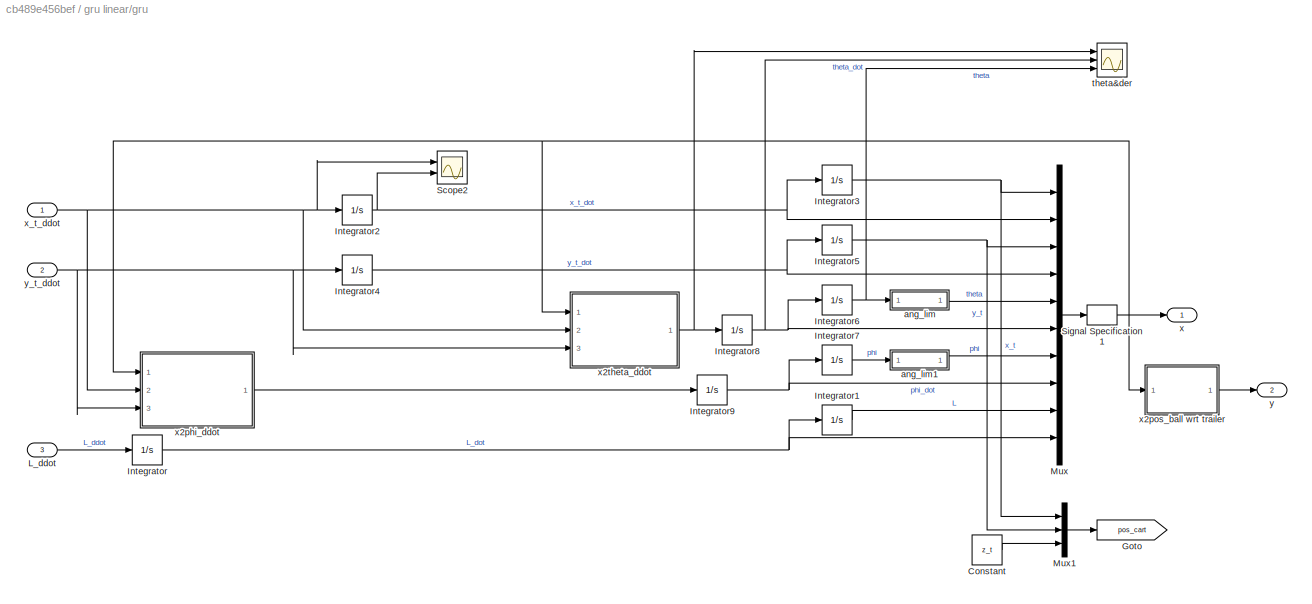
BLOCK [SubSystem] gru linear/gru
  Ports = [3, 2]
  RequestExecContextInheritance = off
BLOCK [Constant] gru linear/gru/Constant
  Value = z_t
BLOCK [Goto] gru linear/gru/Goto
  GotoTag = pos_cart
  TagVisibility = global
BLOCK [Integrator] gru linear/gru/Integrator
  InitialCondition = L_dot_iniziale
  Ports = [1, 1]
BLOCK [Integrator] gru linear/gru/Integrator1
  InitialCondition = L_iniziale
  LimitOutput = on
  LowerSaturationLimit = Lmin
  Ports = [1, 1]
  UpperSaturationLimit = Lmax
BLOCK [Integrator] gru linear/gru/Integrator2
  InitialCondition = x_t_dot_iniziale
  LowerSaturationLimit = -1e3
  Ports = [1, 1]
  UpperSaturationLimit = 1e3
BLOCK [Integrator] gru linear/gru/Integrator3
  InitialCondition = x_t_iniziale
  LimitOutput = on
  LowerSaturationLimit = xmin_workplace
  Ports = [1, 1]
  UpperSaturationLimit = xmax_workplace
BLOCK [Integrator] gru linear/gru/Integrator4
  InitialCondition = y_t_dot_iniziale
  Ports = [1, 1]
BLOCK [Integrator] gru linear/gru/Integrator5
  InitialCondition = y_t_iniziale
  LimitOutput = on
  LowerSaturationLimit = ymin_workplace
  Ports = [1, 1]
  UpperSaturationLimit = ymax_workplace
BLOCK [Integrator] gru linear/gru/Integrator6
  InitialCondition = theta_iniziale
  Ports = [1, 1]
BLOCK [Integrator] gru linear/gru/Integrator7
  InitialCondition = phi_iniziale
  Ports = [1, 1]
BLOCK [Integrator] gru linear/gru/Integrator8
  InitialCondition = theta_dot_iniziale
  Ports = [1, 1]
BLOCK [Integrator] gru linear/gru/Integrator9
  InitialCondition = phi_dot_iniziale
  Ports = [1, 1]
BLOCK [Inport] gru linear/gru/L_ddot
  Port = 3
BLOCK [Mux] gru linear/gru/Mux
  DisplayOption = bar
  Inputs = 10
  Ports = [10, 1]
BLOCK [Mux] gru linear/gru/Mux1
  DisplayOption = bar
  Inputs = 3
  Ports = [3, 1]
BLOCK [Scope] gru linear/gru/Scope2
  Floating = off
  NumInputPorts = 2
  Ports = [2]
  ScopeSpecificationString = Simulink.scopes.TimeScopeBlockCfg('CurrentConfiguration', extmgr.ConfigurationSet(extmgr.Configuration('Core','General UI',true),extmgr.Configuration('Core','Source UI',true),extmgr.Configuration('Sources','WiredSimulink',true,'DataLoggingVariableName','ScopeData1'),extmgr.Configuration('Visuals','Time Domain',true,'SerializedDisplays',{struct('MinYLimReal','-1.00000','MaxYLimReal','1.00000','YLab...<+1413ch>
BLOCK [SignalSpecification] gru linear/gru/Signal Specification1
  Dimensions = 10
BLOCK [SubSystem] gru linear/gru/ang_lim
  Commented = through
  ErrorFcn = Stateflow.Translate.translate
  PermitHierarchicalResolution = ExplicitOnly
  Ports = [1, 1]
  RequestExecContextInheritance = off
  SFBlockType = MATLAB Function
  TreatAsAtomicUnit = on
BLOCK [Demux] gru linear/gru/ang_lim/ Demux 
  Outputs = 1
  Ports = [1, 1]
BLOCK [S-Function] gru linear/gru/ang_lim/ SFunction 
  EnableBusSupport = on
  FunctionName = sf_sfun
  PortCounts = [1 2]
  Ports = [1, 2]
  SFcnIsStateOwnerBlock = off
  SFunctionDeploymentMode = off
  Tag = Stateflow S-Function 18
BLOCK [Terminator] gru linear/gru/ang_lim/ Terminator 
BLOCK [Outport] gru linear/gru/ang_lim/a
BLOCK [Inport] gru linear/gru/ang_lim/ang
BLOCK [SubSystem] gru linear/gru/ang_lim1
  Commented = through
  ErrorFcn = Stateflow.Translate.translate
  PermitHierarchicalResolution = ExplicitOnly
  Ports = [1, 1]
  RequestExecContextInheritance = off
  SFBlockType = MATLAB Function
  TreatAsAtomicUnit = on
BLOCK [Demux] gru linear/gru/ang_lim1/ Demux 
  Outputs = 1
  Ports = [1, 1]
BLOCK [S-Function] gru linear/gru/ang_lim1/ SFunction 
  EnableBusSupport = on
  FunctionName = sf_sfun
  PortCounts = [1 2]
  Ports = [1, 2]
  SFcnIsStateOwnerBlock = off
  SFunctionDeploymentMode = off
  Tag = Stateflow S-Function 19
BLOCK [Terminator] gru linear/gru/ang_lim1/ Terminator 
BLOCK [Outport] gru linear/gru/ang_lim1/a
BLOCK [Inport] gru linear/gru/ang_lim1/ang
BLOCK [Scope] gru linear/gru/theta&der
  Floating = off
  NumInputPorts = 3
  Ports = [3]
  ScopeSpecificationString = Simulink.scopes.TimeScopeBlockCfg('CurrentConfiguration', extmgr.ConfigurationSet(extmgr.Configuration('Core','General UI',true),extmgr.Configuration('Core','Source UI',true),extmgr.Configuration('Sources','WiredSimulink',true,'DataLoggingVariableName','ScopeData2'),extmgr.Configuration('Visuals','Time Domain',true,'SerializedDisplays',{struct('MinYLimReal','-0.03634','MaxYLimReal','0.0434','YLabe...<+1428ch>
BLOCK [Outport] gru linear/gru/x
BLOCK [SubSystem] gru linear/gru/x2phi_ddot
  ErrorFcn = Stateflow.Translate.translate
  PermitHierarchicalResolution = ExplicitOnly
  Ports = [3, 1]
  RequestExecContextInheritance = off
  SFBlockType = MATLAB Function
  TreatAsAtomicUnit = on
BLOCK [Demux] gru linear/gru/x2phi_ddot/ Demux 
  Outputs = 1
  Ports = [1, 1]
BLOCK [S-Function] gru linear/gru/x2phi_ddot/ SFunction 
  EnableBusSupport = on
  FunctionName = sf_sfun
  PortCounts = [3 2]
  Ports = [3, 2]
  SFcnIsStateOwnerBlock = off
  SFunctionDeploymentMode = off
  Tag = Stateflow S-Function 8
BLOCK [Terminator] gru linear/gru/x2phi_ddot/ Terminator 
BLOCK [Outport] gru linear/gru/x2phi_ddot/phi_ddot
BLOCK [Inport] gru linear/gru/x2phi_ddot/x
BLOCK [Inport] gru linear/gru/x2phi_ddot/x_t_ddot
  Port = 2
BLOCK [Inport] gru linear/gru/x2phi_ddot/y_t_ddot
  Port = 3
BLOCK [SubSystem] gru linear/gru/x2pos_ball wrt trailer
  ErrorFcn = Stateflow.Translate.translate
  PermitHierarchicalResolution = ExplicitOnly
  Ports = [1, 1]
  RequestExecContextInheritance = off
  SFBlockType = MATLAB Function
  TreatAsAtomicUnit = on
BLOCK [Demux] gru linear/gru/x2pos_ball wrt trailer/ Demux 
  Outputs = 1
  Ports = [1, 1]
BLOCK [S-Function] gru linear/gru/x2pos_ball wrt trailer/ SFunction 
  EnableBusSupport = on
  FunctionName = sf_sfun
  PortCounts = [1 2]
  Ports = [1, 2]
  SFcnIsStateOwnerBlock = off
  SFunctionDeploymentMode = off
  Tag = Stateflow S-Function 17
BLOCK [Terminator] gru linear/gru/x2pos_ball wrt trailer/ Terminator 
BLOCK [Outport] gru linear/gru/x2pos_ball wrt trailer/pos_ball
BLOCK [Inport] gru linear/gru/x2pos_ball wrt trailer/x
BLOCK [SubSystem] gru linear/gru/x2theta_ddot
  ErrorFcn = Stateflow.Translate.translate
  PermitHierarchicalResolution = ExplicitOnly
  Ports = [3, 1]
  RequestExecContextInheritance = off
  SFBlockType = MATLAB Function
  TreatAsAtomicUnit = on
BLOCK [Demux] gru linear/gru/x2theta_ddot/ Demux 
  Outputs = 1
  Ports = [1, 1]
BLOCK [S-Function] gru linear/gru/x2theta_ddot/ SFunction 
  EnableBusSupport = on
  FunctionName = sf_sfun
  Parameters = b_smorza,g
  PortCounts = [3 2]
  Ports = [3, 2]
  SFcnIsStateOwnerBlock = off
  SFunctionDeploymentMode = off
  Tag = Stateflow S-Function 4
BLOCK [Terminator] gru linear/gru/x2theta_ddot/ Terminator 
BLOCK [Outport] gru linear/gru/x2theta_ddot/theta_ddot
BLOCK [Inport] gru linear/gru/x2theta_ddot/x
BLOCK [Inport] gru linear/gru/x2theta_ddot/x_t_ddot
  Port = 2
BLOCK [Inport] gru linear/gru/x2theta_ddot/y_t_ddot
  Port = 3
BLOCK [Inport] gru linear/gru/x_t_ddot
BLOCK [Outport] gru linear/gru/y
  Port = 2
BLOCK [Inport] gru linear/gru/y_t_ddot
  Port = 2
BLOCK [SubSystem] gru linear/lin_control
  ErrorFcn = Stateflow.Translate.translate
  PermitHierarchicalResolution = ExplicitOnly
  Ports = [2, 1]
  RequestExecContextInheritance = off
  SFBlockType = MATLAB Function
  TreatAsAtomicUnit = on
BLOCK [Demux] gru linear/lin_control/ Demux 
  Outputs = 1
  Ports = [1, 1]
BLOCK [S-Function] gru linear/lin_control/ SFunction 
  EnableBusSupport = on
  FunctionName = sf_sfun
  Parameters = K1,K2
  PortCounts = [2 2]
  Ports = [2, 2]
  SFcnIsStateOwnerBlock = off
  SFunctionDeploymentMode = off
  Tag = Stateflow S-Function 1
BLOCK [Terminator] gru linear/lin_control/ Terminator 
BLOCK [Inport] gru linear/lin_control/e
BLOCK [Inport] gru linear/lin_control/e_dot
  Port = 2
BLOCK [Outport] gru linear/lin_control/ni
BLOCK [Outport] gru linear/pos_ball
BLOCK [Inport] gru linear/pos_rel
BLOCK [SubSystem] gru linear/stop_sim
  Commented = on
  Ports = [1]
  RequestExecContextInheritance = off
BLOCK [Delay] gru linear/stop_sim/Delay
  DelayLength = 1
  InputPortMap = u0
  Ports = [1, 1]
BLOCK [SubSystem] gru linear/stop_sim/MATLAB Function1
  ErrorFcn = Stateflow.Translate.translate
  PermitHierarchicalResolution = ExplicitOnly
  Ports = [2, 2]
  RequestExecContextInheritance = off
  SFBlockType = MATLAB Function
  TreatAsAtomicUnit = on
BLOCK [Demux] gru linear/stop_sim/MATLAB Function1/ Demux 
  Outputs = 1
  Ports = [1, 1]
BLOCK [S-Function] gru linear/stop_sim/MATLAB Function1/ SFunction 
  EnableBusSupport = on
  FunctionName = sf_sfun
  Parameters = threshold
  PortCounts = [2 3]
  Ports = [2, 3]
  SFcnIsStateOwnerBlock = off
  SFunctionDeploymentMode = off
  Tag = Stateflow S-Function 5
BLOCK [Terminator] gru linear/stop_sim/MATLAB Function1/ Terminator 
BLOCK [Inport] gru linear/stop_sim/MATLAB Function1/err
BLOCK [Outport] gru linear/stop_sim/MATLAB Function1/flag
BLOCK [Outport] gru linear/stop_sim/MATLAB Function1/n
  Port = 2
BLOCK [Inport] gru linear/stop_sim/MATLAB Function1/n_old
  Port = 2
BLOCK [Stop] gru linear/stop_sim/Stop Simulation
BLOCK [Inport] gru linear/stop_sim/err
BLOCK [SubSystem] gru linear/x2pos_ball
  ErrorFcn = Stateflow.Translate.translate
  PermitHierarchicalResolution = ExplicitOnly
  Ports = [1, 1]
  RequestExecContextInheritance = off
  SFBlockType = MATLAB Function
  TreatAsAtomicUnit = on
BLOCK [Demux] gru linear/x2pos_ball/ Demux 
  Outputs = 1
  Ports = [1, 1]
BLOCK [S-Function] gru linear/x2pos_ball/ SFunction 
  EnableBusSupport = on
  FunctionName = sf_sfun
  Parameters = z_t
  PortCounts = [1 2]
  Ports = [1, 2]
  SFcnIsStateOwnerBlock = off
  SFunctionDeploymentMode = off
  Tag = Stateflow S-Function 16
BLOCK [Terminator] gru linear/x2pos_ball/ Terminator 
BLOCK [Outport] gru linear/x2pos_ball/pos_ball
BLOCK [Inport] gru linear/x2pos_ball/x
BLOCK [Scope] gru linear/xi
  Floating = off
  NumInputPorts = 1
  Ports = [1]
  ScopeSpecificationString = Simulink.scopes.TimeScopeBlockCfg('CurrentConfiguration', extmgr.ConfigurationSet(extmgr.Configuration('Core','General UI',true),extmgr.Configuration('Core','Source UI',true),extmgr.Configuration('Sources','WiredSimulink',true,'DataLoggingVariableName','ScopeData3'),extmgr.Configuration('Visuals','Time Domain',true,'SerializedDisplays',{struct('MinYLimReal','-63322647149707401347597700694079723203...<+1908ch>
BLOCK [Scope] gru linear/xi_rif-xi
  Floating = off
  NumInputPorts = 6
  Ports = [6]
  ScopeSpecificationString = Simulink.scopes.TimeScopeBlockCfg('CurrentConfiguration', extmgr.ConfigurationSet(extmgr.Configuration('Core','General UI',true),extmgr.Configuration('Core','Source UI',true),extmgr.Configuration('Sources','WiredSimulink',true,'DataLoggingVariableName','ScopeData2'),extmgr.Configuration('Visuals','Time Domain',true,'SerializedDisplays',{struct('MinYLimReal','-10.48812','MaxYLimReal','161.17639','Y...<+4858ch>
BLOCK [SubSystem] gru linear/y2xi
  Ports = [1, 1]
  RequestExecContextInheritance = off
BLOCK [Demux] gru linear/y2xi/Demux
  Outputs = 3
  Ports = [1, 3]
BLOCK [Derivative] gru linear/y2xi/Derivative
  CoefficientInTFapproximation = 1e10
BLOCK [Derivative] gru linear/y2xi/Derivative1
  CoefficientInTFapproximation = 1e10
BLOCK [Derivative] gru linear/y2xi/Derivative2
  CoefficientInTFapproximation = 1e10
BLOCK [Mux] gru linear/y2xi/Mux
  DisplayOption = bar
  Inputs = 6
  Ports = [6, 1]
BLOCK [Inport] gru linear/y2xi/pos_b_rel
BLOCK [Outport] gru linear/y2xi/xi_rif
BLOCK [SubSystem] gru linear/y2xi1
  Commented = on
  Ports = [1, 2]
  RequestExecContextInheritance = off
BLOCK [Demux] gru linear/y2xi1/Demux
  Outputs = 3
  Ports = [1, 3]
BLOCK [Derivative] gru linear/y2xi1/Derivative
  CoefficientInTFapproximation = 1e10
BLOCK [Derivative] gru linear/y2xi1/Derivative1
  CoefficientInTFapproximation = 1e10
BLOCK [Derivative] gru linear/y2xi1/Derivative2
  CoefficientInTFapproximation = 1e10
BLOCK [Inport] gru linear/y2xi1/In1
BLOCK [Mux] gru linear/y2xi1/Mux
  DisplayOption = bar
  Inputs = 6
  Ports = [6, 1]
BLOCK [Mux] gru linear/y2xi1/Mux1
  DisplayOption = bar
  Inputs = 3
  Ports = [3, 1]
BLOCK [Outport] gru linear/y2xi1/xi_rif
  Port = 2
BLOCK [Outport] gru linear/y2xi1/y^(r)
BLOCK [Scope] output
  Floating = off
  NumInputPorts = 3
  Ports = [3]
  ScopeSpecificationString = Simulink.scopes.TimeScopeBlockCfg('CurrentConfiguration', extmgr.ConfigurationSet(extmgr.Configuration('Core','General UI',true),extmgr.Configuration('Core','Source UI',true),extmgr.Configuration('Sources','WiredSimulink',true,'DataLoggingVariableName','ScopeData3'),extmgr.Configuration('Visuals','Time Domain',true,'SerializedDisplays',{struct('MinYLimReal','-0.10911','MaxYLimReal','0.10918','YLab...<+2759ch>
BLOCK [Scope] output1
  Floating = off
  NumInputPorts = 3
  Ports = [3]
  ScopeSpecificationString = Simulink.scopes.TimeScopeBlockCfg('CurrentConfiguration', extmgr.ConfigurationSet(extmgr.Configuration('Core','General UI',true),extmgr.Configuration('Core','Source UI',true),extmgr.Configuration('Sources','WiredSimulink',true,'DataLoggingVariableName','ScopeData1'),extmgr.Configuration('Visuals','Time Domain',true,'SerializedDisplays',{struct('MinYLimReal','0.3587','MaxYLimReal','4.0298','YLabelR...<+2770ch>
BLOCK [Scope] rif vs attuali ASSOLUTI
  Floating = off
  NumInputPorts = 3
  Ports = [3]
  ScopeSpecificationString = Simulink.scopes.TimeScopeBlockCfg('CurrentConfiguration', extmgr.ConfigurationSet(extmgr.Configuration('Core','General UI',true),extmgr.Configuration('Core','Source UI',true),extmgr.Configuration('Sources','WiredSimulink',true,'DataLoggingVariableName','ScopeData1'),extmgr.Configuration('Visuals','Time Domain',true,'SerializedDisplays',{struct('MinYLimReal','-4.96159','MaxYLimReal','0.76031','YLab...<+3685ch>
BLOCK [Scope] rif vs attuali relativi
  Floating = off
  NumInputPorts = 3
  Ports = [3]
  ScopeSpecificationString = Simulink.scopes.TimeScopeBlockCfg('CurrentConfiguration', extmgr.ConfigurationSet(extmgr.Configuration('Core','General UI',true),extmgr.Configuration('Core','Source UI',true),extmgr.Configuration('Sources','WiredSimulink',true,'DataLoggingVariableName','ScopeData1'),extmgr.Configuration('Visuals','Time Domain',true,'SerializedDisplays',{struct('MinYLimReal','-0.09612','MaxYLimReal','0.09951','YLab...<+3883ch>
BLOCK [SubSystem] x2pos_ball wrt trailer
  ErrorFcn = Stateflow.Translate.translate
  PermitHierarchicalResolution = ExplicitOnly
  Ports = [1, 1]
  RequestExecContextInheritance = off
  SFBlockType = MATLAB Function
  TreatAsAtomicUnit = on
BLOCK [Demux] x2pos_ball wrt trailer/ Demux 
  Outputs = 1
  Ports = [1, 1]
BLOCK [S-Function] x2pos_ball wrt trailer/ SFunction 
  EnableBusSupport = on
  FunctionName = sf_sfun
  PortCounts = [1 2]
  Ports = [1, 2]
  SFcnIsStateOwnerBlock = off
  SFunctionDeploymentMode = off
  Tag = Stateflow S-Function 23
BLOCK [Terminator] x2pos_ball wrt trailer/ Terminator 
BLOCK [Outport] x2pos_ball wrt trailer/pos_ball
BLOCK [Inport] x2pos_ball wrt trailer/x
BLOCK [SubSystem] x2pos_cart
  ErrorFcn = Stateflow.Translate.translate
  PermitHierarchicalResolution = ExplicitOnly
  Ports = [1, 1]
  RequestExecContextInheritance = off
  SFBlockType = MATLAB Function
  TreatAsAtomicUnit = on
BLOCK [Demux] x2pos_cart/ Demux 
  Outputs = 1
  Ports = [1, 1]
BLOCK [S-Function] x2pos_cart/ SFunction 
  EnableBusSupport = on
  FunctionName = sf_sfun
  Parameters = z_t
  PortCounts = [1 2]
  Ports = [1, 2]
  SFcnIsStateOwnerBlock = off
  SFunctionDeploymentMode = off
  Tag = Stateflow S-Function 25
BLOCK [Terminator] x2pos_cart/ Terminator 
BLOCK [Outport] x2pos_cart/pos
BLOCK [Inport] x2pos_cart/x
BLOCK [SubSystem] x2pos_cart1
  ErrorFcn = Stateflow.Translate.translate
  PermitHierarchicalResolution = ExplicitOnly
  Ports = [1, 1]
  RequestExecContextInheritance = off
  SFBlockType = MATLAB Function
  TreatAsAtomicUnit = on
BLOCK [Demux] x2pos_cart1/ Demux 
  Outputs = 1
  Ports = [1, 1]
BLOCK [S-Function] x2pos_cart1/ SFunction 
  EnableBusSupport = on
  FunctionName = sf_sfun
  Parameters = z_t
  PortCounts = [1 2]
  Ports = [1, 2]
  SFcnIsStateOwnerBlock = off
  SFunctionDeploymentMode = off
  Tag = Stateflow S-Function 30
BLOCK [Terminator] x2pos_cart1/ Terminator 
BLOCK [Outport] x2pos_cart1/pos
BLOCK [Inport] x2pos_cart1/x
BLOCK [SubSystem] zplot
  ErrorFcn = Stateflow.Translate.translate
  PermitHierarchicalResolution = ExplicitOnly
  Ports = [1, 1]
  RequestExecContextInheritance = off
  SFBlockType = MATLAB Function
  TreatAsAtomicUnit = on
BLOCK [Demux] zplot/ Demux 
  Outputs = 1
  Ports = [1, 1]
BLOCK [S-Function] zplot/ SFunction 
  EnableBusSupport = on
  FunctionName = sf_sfun
  PortCounts = [1 2]
  Ports = [1, 2]
  SFcnIsStateOwnerBlock = off
  SFunctionDeploymentMode = off
  Tag = Stateflow S-Function 20
BLOCK [Terminator] zplot/ Terminator 
BLOCK [Inport] zplot/y
BLOCK [Outport] zplot/y_new
BLOCK [SubSystem] zplot1
  ErrorFcn = Stateflow.Translate.translate
  PermitHierarchicalResolution = ExplicitOnly
  Ports = [1, 1]
  RequestExecContextInheritance = off
  SFBlockType = MATLAB Function
  TreatAsAtomicUnit = on
BLOCK [Demux] zplot1/ Demux 
  Outputs = 1
  Ports = [1, 1]
BLOCK [S-Function] zplot1/ SFunction 
  EnableBusSupport = on
  FunctionName = sf_sfun
  PortCounts = [1 2]
  Ports = [1, 2]
  SFcnIsStateOwnerBlock = off
  SFunctionDeploymentMode = off
  Tag = Stateflow S-Function 11
BLOCK [Terminator] zplot1/ Terminator 
BLOCK [Inport] zplot1/y
BLOCK [Outport] zplot1/y_new
BLOCK [SubSystem] zplot2
  ErrorFcn = Stateflow.Translate.translate
  PermitHierarchicalResolution = ExplicitOnly
  Ports = [1, 1]
  RequestExecContextInheritance = off
  SFBlockType = MATLAB Function
  TreatAsAtomicUnit = on
BLOCK [Demux] zplot2/ Demux 
  Outputs = 1
  Ports = [1, 1]
BLOCK [S-Function] zplot2/ SFunction 
  EnableBusSupport = on
  FunctionName = sf_sfun
  PortCounts = [1 2]
  Ports = [1, 2]
  SFcnIsStateOwnerBlock = off
  SFunctionDeploymentMode = off
  Tag = Stateflow S-Function 24
BLOCK [Terminator] zplot2/ Terminator 
BLOCK [Inport] zplot2/y
BLOCK [Outport] zplot2/y_new
BLOCK [SubSystem] zplot3
  ErrorFcn = Stateflow.Translate.translate
  PermitHierarchicalResolution = ExplicitOnly
  Ports = [1, 1]
  RequestExecContextInheritance = off
  SFBlockType = MATLAB Function
  TreatAsAtomicUnit = on
BLOCK [Demux] zplot3/ Demux 
  Outputs = 1
  Ports = [1, 1]
BLOCK [S-Function] zplot3/ SFunction 
  EnableBusSupport = on
  FunctionName = sf_sfun
  PortCounts = [1 2]
  Ports = [1, 2]
  SFcnIsStateOwnerBlock = off
  SFunctionDeploymentMode = off
  Tag = Stateflow S-Function 21
BLOCK [Terminator] zplot3/ Terminator 
BLOCK [Inport] zplot3/y
BLOCK [Outport] zplot3/y_new
BLOCK [SubSystem] zplot4
  ErrorFcn = Stateflow.Translate.translate
  PermitHierarchicalResolution = ExplicitOnly
  Ports = [1, 1]
  RequestExecContextInheritance = off
  SFBlockType = MATLAB Function
  TreatAsAtomicUnit = on
BLOCK [Demux] zplot4/ Demux 
  Outputs = 1
  Ports = [1, 1]
BLOCK [S-Function] zplot4/ SFunction 
  EnableBusSupport = on
  FunctionName = sf_sfun
  PortCounts = [1 2]
  Ports = [1, 2]
  SFcnIsStateOwnerBlock = off
  SFunctionDeploymentMode = off
  Tag = Stateflow S-Function 29
BLOCK [Terminator] zplot4/ Terminator 
BLOCK [Inport] zplot4/y
BLOCK [Outport] zplot4/y_new
BLOCK [SubSystem] zplot5
  ErrorFcn = Stateflow.Translate.translate
  PermitHierarchicalResolution = ExplicitOnly
  Ports = [1, 1]
  RequestExecContextInheritance = off
  SFBlockType = MATLAB Function
  TreatAsAtomicUnit = on
BLOCK [Demux] zplot5/ Demux 
  Outputs = 1
  Ports = [1, 1]
BLOCK [S-Function] zplot5/ SFunction 
  EnableBusSupport = on
  FunctionName = sf_sfun
  PortCounts = [1 2]
  Ports = [1, 2]
  SFcnIsStateOwnerBlock = off
  SFunctionDeploymentMode = off
  Tag = Stateflow S-Function 31
BLOCK [Terminator] zplot5/ Terminator 
BLOCK [Inport] zplot5/y
BLOCK [Outport] zplot5/y_new
ANNOTATION (root): Grafici 3D
ANNOTATION (root): Rif e Uscite
ANNOTATION (root): STATO
ANNOTATION (root): USCITE
ANNOTATION gru linear: Linearized System
LINE Demux10:1 -> Scope1:1
LINE Demux10:2 -> Scope1:2
LINE Demux10:3 -> Scope1:3
LINE Demux11:1 -> Mux3:1
LINE Demux11:2 -> Mux8:1
LINE Demux11:3 -> Mux9:1
LINE Demux12:1 -> XY Pos Trailer:1
LINE Demux12:2 -> XY Pos Trailer:2
LINE Demux12:3 -> Terminator:1
LINE Demux14:1 -> Mux10:1
LINE Demux14:2 -> Mux11:1
LINE Demux14:3 -> Mux12:1
LINE Demux15:1 -> Mux10:2
LINE Demux15:2 -> Mux11:2
LINE Demux15:3 -> Mux12:2
LINE Demux2:1 -> Signal Specification:1
LINE Demux2:2 -> Signal Specification1:1
LINE Demux2:3 -> Signal Specification2:1
LINE Demux2:4 -> Signal Specification3:1
LINE Demux2:5 -> Signal Specification4:1
LINE Demux3:1 -> Scope5:1
LINE Demux3:2 -> Scope5:2
NET Demux4:1 -> Scope3:1, Scope8:2
LINE Demux4:2 -> Scope3:2
LINE Demux5:1 -> Scope4:1
LINE Demux5:2 -> Scope4:2
NET Demux6:1 -> Scope6:1, Scope8:1
LINE Demux6:2 -> Scope6:2
LINE Demux7:1 -> Scope7:1
LINE Demux7:2 -> Scope7:2
LINE Demux8:1 -> Mux3:2
LINE Demux8:2 -> Mux8:2
LINE Demux8:3 -> Mux9:2
LINE Demux9:1 -> output1:1
LINE Demux9:2 -> output1:2
LINE Demux9:3 -> output1:3
LINE Demux:1 -> output:1
LINE Demux:2 -> output:2
LINE Demux:3 -> output:3
LINE From11:1 -> zplot:1
NET From1:1 -> x2pos_ball wrt trailer:1, x2pos_cart1:1, x2pos_cart:1
LINE From2:1 -> Demux14:1
LINE From4:1 -> Demux:1
LINE From5:1 -> Demux2:1
LINE From6:1 -> Demux8:1
LINE From7:1 -> Demux15:1
LINE From8:1 -> zplot5:1
LINE From:1 -> Demux11:1
LINE Generazione riferimenti/Circonferenza/Clock2:1 -> Generazione riferimenti/Circonferenza/Trapezoidal Velocity Profile Trajectory:1
LINE Generazione riferimenti/Circonferenza/Constant4:1 -> Generazione riferimenti/Circonferenza/Mux1:2
LINE Generazione riferimenti/Circonferenza/Mux1:1 -> Generazione riferimenti/Circonferenza/rif:1
LINE Generazione riferimenti/Circonferenza/Mux2:1 -> Generazione riferimenti/Circonferenza/To Workspace2:1
LINE Generazione riferimenti/Circonferenza/Percorso:1 -> Generazione riferimenti/Circonferenza/Mux1:1
NET Generazione riferimenti/Circonferenza/Trapezoidal Velocity Profile Trajectory:1 -> Generazione riferimenti/Circonferenza/Mux2:1, Generazione riferimenti/Circonferenza/Percorso:1, Generazione riferimenti/Circonferenza/stop_sim:1
LINE Generazione riferimenti/Circonferenza/Trapezoidal Velocity Profile Trajectory:2 -> Generazione riferimenti/Circonferenza/Mux2:2
LINE Generazione riferimenti/Circonferenza/Trapezoidal Velocity Profile Trajectory:3 -> Generazione riferimenti/Circonferenza/Mux2:3
LINE Generazione riferimenti/Circonferenza/stop_sim/Delay:1 -> Generazione riferimenti/Circonferenza/stop_sim/MATLAB Function2:2
LINE Generazione riferimenti/Circonferenza/stop_sim/MATLAB Function2:1 -> Generazione riferimenti/Circonferenza/stop_sim/Stop Simulation:1
LINE Generazione riferimenti/Circonferenza/stop_sim/MATLAB Function2:2 -> Generazione riferimenti/Circonferenza/stop_sim/Delay:1
LINE Generazione riferimenti/Circonferenza/stop_sim/s:1 -> Generazione riferimenti/Circonferenza/stop_sim/MATLAB Function2:1
LINE Generazione riferimenti/Clotoidi/Clock:1 -> Generazione riferimenti/Clotoidi/Trapezoidal Velocity Profile Trajectory:1
LINE Generazione riferimenti/Clotoidi/Constant4:1 -> Generazione riferimenti/Clotoidi/Mux2:2
LINE Generazione riferimenti/Clotoidi/Mux1:1 -> Generazione riferimenti/Clotoidi/To Workspace3:1
LINE Generazione riferimenti/Clotoidi/Mux2:1 -> Generazione riferimenti/Clotoidi/rif:1
LINE Generazione riferimenti/Clotoidi/Mux:1 -> Generazione riferimenti/Clotoidi/Mux2:1
NET Generazione riferimenti/Clotoidi/Trapezoidal Velocity Profile Trajectory:1 -> Generazione riferimenti/Clotoidi/Mux1:1, Generazione riferimenti/Clotoidi/stop_sim:1, Generazione riferimenti/Clotoidi/x_r(s), y_r(s):1
LINE Generazione riferimenti/Clotoidi/Trapezoidal Velocity Profile Trajectory:2 -> Generazione riferimenti/Clotoidi/Mux1:2
LINE Generazione riferimenti/Clotoidi/Trapezoidal Velocity Profile Trajectory:3 -> Generazione riferimenti/Clotoidi/Mux1:3
LINE Generazione riferimenti/Clotoidi/stop_sim/Delay:1 -> Generazione riferimenti/Clotoidi/stop_sim/MATLAB Function1:2
LINE Generazione riferimenti/Clotoidi/stop_sim/MATLAB Function1:1 -> Generazione riferimenti/Clotoidi/stop_sim/Stop Simulation:1
LINE Generazione riferimenti/Clotoidi/stop_sim/MATLAB Function1:2 -> Generazione riferimenti/Clotoidi/stop_sim/Delay:1
LINE Generazione riferimenti/Clotoidi/stop_sim/s:1 -> Generazione riferimenti/Clotoidi/stop_sim/MATLAB Function1:1
LINE Generazione riferimenti/Clotoidi/x_r(s), y_r(s):1 -> Generazione riferimenti/Clotoidi/Mux:1
LINE Generazione riferimenti/Clotoidi/x_r(s), y_r(s):2 -> Generazione riferimenti/Clotoidi/Mux:2
LINE Generazione riferimenti/Punto/Clock2:1 -> Generazione riferimenti/Punto/Trapezoidal Velocity Profile Trajectory:1
LINE Generazione riferimenti/Punto/Mux1:1 -> Generazione riferimenti/Punto/To Workspace2:1
LINE Generazione riferimenti/Punto/Percorso1:1 -> Generazione riferimenti/Punto/rif:1
NET Generazione riferimenti/Punto/Trapezoidal Velocity Profile Trajectory:1 -> Generazione riferimenti/Punto/Mux1:1, Generazione riferimenti/Punto/Percorso1:1, Generazione riferimenti/Punto/stop_sim:1
LINE Generazione riferimenti/Punto/Trapezoidal Velocity Profile Trajectory:2 -> Generazione riferimenti/Punto/Mux1:2
LINE Generazione riferimenti/Punto/Trapezoidal Velocity Profile Trajectory:3 -> Generazione riferimenti/Punto/Mux1:3
LINE Generazione riferimenti/Punto/stop_sim/Delay:1 -> Generazione riferimenti/Punto/stop_sim/MATLAB Function1:2
LINE Generazione riferimenti/Punto/stop_sim/MATLAB Function1:1 -> Generazione riferimenti/Punto/stop_sim/Stop Simulation:1
LINE Generazione riferimenti/Punto/stop_sim/MATLAB Function1:2 -> Generazione riferimenti/Punto/stop_sim/Delay:1
LINE Generazione riferimenti/Punto/stop_sim/s:1 -> Generazione riferimenti/Punto/stop_sim/MATLAB Function1:1
LINE Generazione riferimenti/Retta/Clock1:1 -> Generazione riferimenti/Retta/Trapezoidal Velocity Profile Trajectory:1
LINE Generazione riferimenti/Retta/Constant4:1 -> Generazione riferimenti/Retta/Mux:2
LINE Generazione riferimenti/Retta/Mux2:1 -> Generazione riferimenti/Retta/To Workspace1:1
LINE Generazione riferimenti/Retta/Mux:1 -> Generazione riferimenti/Retta/rif:1
LINE Generazione riferimenti/Retta/Percorso:1 -> Generazione riferimenti/Retta/Mux:1
NET Generazione riferimenti/Retta/Trapezoidal Velocity Profile Trajectory:1 -> Generazione riferimenti/Retta/Mux2:1, Generazione riferimenti/Retta/Percorso:1, Generazione riferimenti/Retta/stop_sim:1
LINE Generazione riferimenti/Retta/Trapezoidal Velocity Profile Trajectory:2 -> Generazione riferimenti/Retta/Mux2:2
LINE Generazione riferimenti/Retta/Trapezoidal Velocity Profile Trajectory:3 -> Generazione riferimenti/Retta/Mux2:3
LINE Generazione riferimenti/Retta/stop_sim/Delay:1 -> Generazione riferimenti/Retta/stop_sim/MATLAB Function1:2
LINE Generazione riferimenti/Retta/stop_sim/MATLAB Function1:1 -> Generazione riferimenti/Retta/stop_sim/Stop Simulation:1
LINE Generazione riferimenti/Retta/stop_sim/MATLAB Function1:2 -> Generazione riferimenti/Retta/stop_sim/Delay:1
LINE Generazione riferimenti/Retta/stop_sim/s:1 -> Generazione riferimenti/Retta/stop_sim/MATLAB Function1:1
LINE Generazione riferimenti/Sinusoide/Clock1:1 -> Generazione riferimenti/Sinusoide/Trapezoidal Velocity Profile Trajectory:1
LINE Generazione riferimenti/Sinusoide/Constant:1 -> Generazione riferimenti/Sinusoide/Mux:2
LINE Generazione riferimenti/Sinusoide/Mux1:1 -> Generazione riferimenti/Sinusoide/To Workspace1:1
LINE Generazione riferimenti/Sinusoide/Mux:1 -> Generazione riferimenti/Sinusoide/rif:1
LINE Generazione riferimenti/Sinusoide/Percorso:1 -> Generazione riferimenti/Sinusoide/Signal Specification:1
LINE Generazione riferimenti/Sinusoide/Signal Specification:1 -> Generazione riferimenti/Sinusoide/Mux:1
NET Generazione riferimenti/Sinusoide/Trapezoidal Velocity Profile Trajectory:1 -> Generazione riferimenti/Sinusoide/Mux1:1, Generazione riferimenti/Sinusoide/Percorso:1, Generazione riferimenti/Sinusoide/stop_sim:1
LINE Generazione riferimenti/Sinusoide/Trapezoidal Velocity Profile Trajectory:2 -> Generazione riferimenti/Sinusoide/Mux1:2
LINE Generazione riferimenti/Sinusoide/Trapezoidal Velocity Profile Trajectory:3 -> Generazione riferimenti/Sinusoide/Mux1:3
LINE Generazione riferimenti/Sinusoide/stop_sim/Delay:1 -> Generazione riferimenti/Sinusoide/stop_sim/MATLAB Function1:2
LINE Generazione riferimenti/Sinusoide/stop_sim/MATLAB Function1:1 -> Generazione riferimenti/Sinusoide/stop_sim/Stop Simulation:1
LINE Generazione riferimenti/Sinusoide/stop_sim/MATLAB Function1:2 -> Generazione riferimenti/Sinusoide/stop_sim/Delay:1
LINE Generazione riferimenti/Sinusoide/stop_sim/s:1 -> Generazione riferimenti/Sinusoide/stop_sim/MATLAB Function1:1
NET Generazione riferimenti:1 -> Goto2:1, Sum2:1, To Workspace3:1
LINE Mux10:1 -> rif vs attuali ASSOLUTI:1
LINE Mux11:1 -> rif vs attuali ASSOLUTI:2
LINE Mux12:1 -> rif vs attuali ASSOLUTI:3
LINE Mux3:1 -> rif vs attuali relativi:1
LINE Mux4:1 -> 3D trailer&ball1:1
LINE Mux8:1 -> rif vs attuali relativi:2
LINE Mux9:1 -> rif vs attuali relativi:3
LINE Mux:1 -> 3D trailer&ball:1
LINE Signal Specification1:1 -> Demux3:1
LINE Signal Specification2:1 -> Demux6:1
LINE Signal Specification3:1 -> Demux4:1
LINE Signal Specification4:1 -> Demux7:1
LINE Signal Specification5:1 -> Mux:2
LINE Signal Specification6:1 -> Mux:1
LINE Signal Specification7:1 -> Mux4:2
LINE Signal Specification8:1 -> Mux4:1
LINE Signal Specification9:1 -> Mux4:3
LINE Signal Specification:1 -> Demux5:1
NET Sum2:1 -> Scope:1, To Workspace5:1, controller pos_ball assoluta:1
LINE Zero-Order Hold:1 -> 3D plot of trailer, cable and ball:1
LINE controller pos_ball assoluta/Clock:1 -> controller pos_ball assoluta/rif_gen1:6
LINE controller pos_ball assoluta/Derivative:1 -> controller pos_ball assoluta/rif_gen1:5
LINE controller pos_ball assoluta/From1:1 -> controller pos_ball assoluta/rif_gen1:2
LINE controller pos_ball assoluta/From:1 -> controller pos_ball assoluta/rif_gen1:3
NET controller pos_ball assoluta/err_ball:1 -> controller pos_ball assoluta/Derivative:1, controller pos_ball assoluta/rif_gen1:4
LINE controller pos_ball assoluta/rif_gen1:1 -> controller pos_ball assoluta/pos_ball_rel:1
LINE controller pos_ball assoluta/state1:1 -> controller pos_ball assoluta/rif_gen1:1
LINE controller pos_ball assoluta:1 -> gru linear:1
LINE gru linear/Demux13:1 -> gru linear/xi_rif-xi:1
LINE gru linear/Demux13:2 -> gru linear/xi_rif-xi:2
LINE gru linear/Demux13:3 -> gru linear/xi_rif-xi:3
LINE gru linear/Demux13:4 -> gru linear/xi_rif-xi:4
LINE gru linear/Demux13:5 -> gru linear/xi_rif-xi:5
LINE gru linear/Demux13:6 -> gru linear/xi_rif-xi:6
NET gru linear/Demux1:1 -> gru linear/Mux4:1, gru linear/Saturation1:1
NET gru linear/Demux1:2 -> gru linear/Mux5:1, gru linear/Saturation2:1
NET gru linear/Demux1:3 -> gru linear/Mux6:1, gru linear/Saturation3:1
LINE gru linear/Derivatives1/Derivative:1 -> gru linear/Derivatives1/e_dot:1
LINE gru linear/Derivatives1/e:1 -> gru linear/Derivatives1/Derivative:1
LINE gru linear/Derivatives1:1 -> gru linear/lin_control:2
NET gru linear/MATLAB Function:1 -> gru linear/Sum2:2, gru linear/xi:1
LINE gru linear/Mux4:1 -> gru linear/control_u:1
LINE gru linear/Mux5:1 -> gru linear/control_u:2
LINE gru linear/Mux6:1 -> gru linear/control_u:3
NET gru linear/Saturation1:1 -> gru linear/Mux4:2, gru linear/gru:1
NET gru linear/Saturation2:1 -> gru linear/Mux5:2, gru linear/gru:2
NET gru linear/Saturation3:1 -> gru linear/Mux6:2, gru linear/gru:3
NET gru linear/Sum2:1 -> gru linear/Demux13:1, gru linear/Derivatives1:1, gru linear/To Workspace2:1, gru linear/lin_control:1
LINE gru linear/control_lin:1 -> gru linear/Scope2:1
LINE gru linear/control_lin:2 -> gru linear/Scope2:2
LINE gru linear/control_lin:3 -> gru linear/Scope2:3
LINE gru linear/feedback linearization:1 -> gru linear/Demux1:1
LINE gru linear/gru/Constant:1 -> gru linear/gru/Mux1:3
LINE gru linear/gru/Integrator1:1 -> gru linear/gru/Mux:9
NET gru linear/gru/Integrator2:1 -> gru linear/gru/Integrator3:1, gru linear/gru/Mux:2, gru linear/gru/Scope2:2
NET gru linear/gru/Integrator3:1 -> gru linear/gru/Mux1:1, gru linear/gru/Mux:1
NET gru linear/gru/Integrator4:1 -> gru linear/gru/Integrator5:1, gru linear/gru/Mux:4
NET gru linear/gru/Integrator5:1 -> gru linear/gru/Mux1:2, gru linear/gru/Mux:3
NET gru linear/gru/Integrator6:1 -> gru linear/gru/ang_lim:1, gru linear/gru/theta&der:3
LINE gru linear/gru/Integrator7:1 -> gru linear/gru/ang_lim1:1
NET gru linear/gru/Integrator8:1 -> gru linear/gru/Integrator6:1, gru linear/gru/Mux:6, gru linear/gru/theta&der:2
NET gru linear/gru/Integrator9:1 -> gru linear/gru/Integrator7:1, gru linear/gru/Mux:8
NET gru linear/gru/Integrator:1 -> gru linear/gru/Integrator1:1, gru linear/gru/Mux:10
LINE gru linear/gru/L_ddot:1 -> gru linear/gru/Integrator:1
LINE gru linear/gru/Mux1:1 -> gru linear/gru/Goto:1
LINE gru linear/gru/Mux:1 -> gru linear/gru/Signal Specification1:1
NET gru linear/gru/Signal Specification1:1 -> gru linear/gru/x2phi_ddot:1, gru linear/gru/x2pos_ball wrt trailer:1, gru linear/gru/x2theta_ddot:1, gru linear/gru/x:1
LINE gru linear/gru/ang_lim1:1 -> gru linear/gru/Mux:7
LINE gru linear/gru/ang_lim:1 -> gru linear/gru/Mux:5
LINE gru linear/gru/x2phi_ddot:1 -> gru linear/gru/Integrator9:1
LINE gru linear/gru/x2pos_ball wrt trailer:1 -> gru linear/gru/y:1
NET gru linear/gru/x2theta_ddot:1 -> gru linear/gru/Integrator8:1, gru linear/gru/theta&der:1
NET gru linear/gru/x_t_ddot:1 -> gru linear/gru/Integrator2:1, gru linear/gru/Scope2:1, gru linear/gru/x2phi_ddot:2, gru linear/gru/x2theta_ddot:2
NET gru linear/gru/y_t_ddot:1 -> gru linear/gru/Integrator4:1, gru linear/gru/x2phi_ddot:3, gru linear/gru/x2theta_ddot:3
NET gru linear/gru:1 -> gru linear/Goto1:1, gru linear/MATLAB Function:1, gru linear/To Workspace:1, gru linear/feedback linearization:1, gru linear/x2pos_ball:1
NET gru linear/gru:2 -> gru linear/Goto3:1, gru linear/To Workspace3:1
NET gru linear/lin_control:1 -> gru linear/control_lin:1, gru linear/feedback linearization:2
NET gru linear/pos_rel:1 -> gru linear/Goto:1, gru linear/To Workspace1:1, gru linear/y2xi:1
LINE gru linear/stop_sim/Delay:1 -> gru linear/stop_sim/MATLAB Function1:2
LINE gru linear/stop_sim/MATLAB Function1:1 -> gru linear/stop_sim/Stop Simulation:1
LINE gru linear/stop_sim/MATLAB Function1:2 -> gru linear/stop_sim/Delay:1
LINE gru linear/stop_sim/err:1 -> gru linear/stop_sim/MATLAB Function1:1
NET gru linear/x2pos_ball:1 -> gru linear/Goto4:1, gru linear/To Workspace4:1, gru linear/pos_ball:1
NET gru linear/y2xi/Demux:1 -> gru linear/y2xi/Derivative:1, gru linear/y2xi/Mux:1
NET gru linear/y2xi/Demux:2 -> gru linear/y2xi/Derivative1:1, gru linear/y2xi/Mux:3
NET gru linear/y2xi/Demux:3 -> gru linear/y2xi/Derivative2:1, gru linear/y2xi/Mux:5
LINE gru linear/y2xi/Derivative1:1 -> gru linear/y2xi/Mux:4
LINE gru linear/y2xi/Derivative2:1 -> gru linear/y2xi/Mux:6
LINE gru linear/y2xi/Derivative:1 -> gru linear/y2xi/Mux:2
LINE gru linear/y2xi/Mux:1 -> gru linear/y2xi/xi_rif:1
LINE gru linear/y2xi/pos_b_rel:1 -> gru linear/y2xi/Demux:1
NET gru linear/y2xi1/Demux:1 -> gru linear/y2xi1/Derivative:1, gru linear/y2xi1/Mux1:1, gru linear/y2xi1/Mux:1
NET gru linear/y2xi1/Demux:2 -> gru linear/y2xi1/Derivative1:1, gru linear/y2xi1/Mux1:2, gru linear/y2xi1/Mux:3
NET gru linear/y2xi1/Demux:3 -> gru linear/y2xi1/Derivative2:1, gru linear/y2xi1/Mux1:3, gru linear/y2xi1/Mux:5
LINE gru linear/y2xi1/Derivative1:1 -> gru linear/y2xi1/Mux:4
LINE gru linear/y2xi1/Derivative2:1 -> gru linear/y2xi1/Mux:6
LINE gru linear/y2xi1/Derivative:1 -> gru linear/y2xi1/Mux:2
LINE gru linear/y2xi1/In1:1 -> gru linear/y2xi1/Demux:1
LINE gru linear/y2xi1/Mux1:1 -> gru linear/y2xi1/y^(r):1
LINE gru linear/y2xi1/Mux:1 -> gru linear/y2xi1/xi_rif:1
LINE gru linear/y2xi:1 -> gru linear/Sum2:1
LINE gru linear:1 -> Sum2:2
NET x2pos_ball wrt trailer:1 -> Demux10:1, zplot2:1, zplot3:1
LINE x2pos_cart1:1 -> zplot4:1
NET x2pos_cart:1 -> Demux12:1, zplot1:1
LINE zplot1:1 -> Signal Specification6:1
LINE zplot2:1 -> 3D pos_ball trailer in origin:1
LINE zplot3:1 -> Signal Specification7:1
LINE zplot4:1 -> Signal Specification8:1
LINE zplot5:1 -> Signal Specification9:1
LINE zplot:1 -> Signal Specification5:1
note: NET lines group one-source signal fan-out (src -> all destinations, sorted); 1:1 wires keep LINE
CHART Generazione riferimenti/Punto/stop_sim/MATLAB Function1 states=1 transitions=1
  STATE_LABEL 'eML_blk_kernel()'
  STATE_LABEL 'SCRIPT:\nfunction [flag, n] = stop_function(s, n_old, threshold, s_finale)\n\tflag = 0;\n\tn = n_old;\n\tif norm(s-s_finale, 2) < threshold\n\t\tn=n+1;\n\telse\n\t\tn=0;\n\tend\n\t\n\tif n > 1e3\n\t\tflag = 1;\n\t\tn = 0;\n\tend\nend\n'
CHART gru linear/gru/x2phi_ddot states=1 transitions=1
  STATE_LABEL 'eML_blk_kernel()'
  STATE_LABEL 'SCRIPT:\nfunction phi_ddot = fcn(x, x_t_ddot, y_t_ddot)\n\t\n\ttheta\t\t= x(5);\n\ttheta_dot\t= x(6);\n\tphi\t\t\t= x(7);\n\tphi_dot\t\t= x(8);\n\tL\t\t\t= x(9);\n\tL_dot\t\t= x(10);\n\t\nphi_ddot = -2*(L_dot/L)*phi_dot-2*phi_dot*theta_dot*cot(theta) + (-cos(phi)/(sin(theta)*L))*x_t_ddot + (sin(phi)/(sin(theta)*L))*y_t_ddot;\n'
CHART Generazione riferimenti/Circonferenza/stop_sim/MATLAB Function2 states=1 transitions=1
  STATE_LABEL 'eML_blk_kernel()'
  STATE_LABEL 'SCRIPT:\nfunction [flag, n] = stop_function(s, n_old, threshold, s_finale)\n\tflag = 0;\n\tn = n_old;\n\tif norm(s-s_finale, 2) < threshold\n\t\tn=n+1;\n\telse\n\t\tn=0;\n\tend\n\t\n\tif n > 100\n\t\tflag = 1;\n\t\tn = 0;\n\tend\nend\n'  <repeated x4 — deduplicated; at blocks: MATLAB Function2, MATLAB Function1>
CHART Generazione riferimenti/Circonferenza/Percorso states=1 transitions=1
  STATE_LABEL 'eML_blk_kernel()'
  STATE_LABEL 'SCRIPT:\nfunction rif = percorso(s, centro, v_r)\n\nr = 5;  % 1\ntheta_circ = s/r;\n\nif theta_circ >=  3*2*pi % dopotre giri ti fermi\n\ttheta_circ = 3*2*pi;\nend\n\nrif = centro + r*[cos(theta_circ);sin(theta_circ)];\t\t% circonferenza\n\nend\n'
CHART zplot1 states=1 transitions=1
  STATE_LABEL 'eML_blk_kernel()'
  STATE_LABEL 'SCRIPT:\nfunction y_new = fcn(y)\n\ny_new\t = y;\ny_new(3) = -y_new(3);\n\nend\n'
CHART Generazione riferimenti/Retta/Percorso states=1 transitions=1
  STATE_LABEL 'eML_blk_kernel()'
  STATE_LABEL 'SCRIPT:\nfunction rif  = retta(s, dir_retta, x_b_iniziale, y_b_iniziale)\n\n\n\n% rif = [x_b_iniziale;y_b_iniziale] + s * dir_retta;\n\nrif = s * dir_retta;\nend'
CHART Generazione riferimenti/Clotoidi/x_r(s), y_r(s) states=1 transitions=1
  STATE_LABEL 'eML_blk_kernel()'
  STATE_LABEL "SCRIPT:\nfunction [x_r,y_r] = percorso(s, indexclot, theta_rette, yp, xp, ...\n\t\t\t\t\t\t\t\t\t\tLsofar, n_p, Lsofarclot, Ltot)\n\t\t\t\t\t\t\t\t\t\ncoder.extrinsic('pointsOnClothoid')\n% fine percorso\nif s >= Ltot\n\ts = Ltot; % cosi` da plottare l'ultimo punto\nend\n\nntratto=0;\n\tXYS = [0; 0]; %definito prima\n\n\t%Parte per capire in che tratto sono\n\tif s < Lsofar(1)\n\t\tntratto=1;\n\telse\n\t\tfor ii=2:(n_p-1)\n\t\t\tif s>=Lsofar(ii-...<+1216ch>"
CHART Generazione riferimenti/Retta/stop_sim/MATLAB Function1 states=1 transitions=1
  STATE_LABEL 'eML_blk_kernel()'
CHART Generazione riferimenti/Sinusoide/Percorso states=1 transitions=1
  STATE_LABEL 'eML_blk_kernel()'
  STATE_LABEL 'SCRIPT:\nfunction rif  = retta(s, dir_retta)\n\nr = 3;\ntheta_circ = s/r;\n\n% if theta_circ >=  3*2*pi % dopotre giri ti fermi\n% \ttheta_circ = 3*2*pi;\n% end\n\nrif = dir_retta * s + r*[0; sin(theta_circ)];\n\nend'
CHART gru linear/x2pos_ball states=1 transitions=1
  STATE_LABEL 'eML_blk_kernel()'
  STATE_LABEL 'SCRIPT:\nfunction pos_ball = fcn(x, z_t)\n\t\n\tx_t\t\t= x(1);\n\ty_t\t\t= x(3);\n\ttheta\t= x(5);\n\tphi\t\t= x(7);\n\tL\t\t= x(9);\n\t\npos_ball = [x_t + L*sin(theta)*sin(phi); ...\n\t\t\ty_t + L*sin(theta)*cos(phi);...\n\t\t\tz_t + L*cos(theta)];'
CHART gru linear/gru/x2pos_ball
wrt trailer states=1 transitions=1
  STATE_LABEL 'eML_blk_kernel()'
  STATE_LABEL 'SCRIPT:\nfunction pos_ball = fcn(x)\n\t\n\ttheta\t= x(5);\n\tphi\t\t= x(7);\n\tL\t\t= x(9);\n\t\npos_ball = [ L*sin(theta)*sin(phi); ...\n\t\t\t L*sin(theta)*cos(phi);...\n\t\t\t L*cos(theta)];\n\t\t \nend'
CHART gru linear/gru/ang_lim states=1 transitions=1
  STATE_LABEL 'eML_blk_kernel()'
  STATE_LABEL 'SCRIPT:\nfunction a = ang_lim(ang)\n\n\tc = cos(ang);\n\ts = sin(ang);\n\ta = atan2(s, c);\n\nend\n\n'
CHART gru linear/gru/ang_lim1 states=1 transitions=1
  STATE_LABEL 'eML_blk_kernel()'
  STATE_LABEL 'SCRIPT:\nfunction a = ang_lim(ang)\n\n\tc = cos(ang);\n\ts = sin(ang);\n\ta = atan2(s, c);\n\nend\n\n'
CHART zplot states=1 transitions=1
  STATE_LABEL 'eML_blk_kernel()'
  STATE_LABEL 'SCRIPT:\nfunction y_new = fcn(y)\n\ny_new\t = y;\ny_new(3) = -y_new(3);\n\nend\n'
CHART zplot3 states=1 transitions=1
  STATE_LABEL 'eML_blk_kernel()'
  STATE_LABEL 'SCRIPT:\nfunction y_new = fcn(y)\n\ny_new\t = y;\ny_new(3) = -y_new(3);\n\nend\n'
CHART 3D plot of trailer, cable and ball states=1 transitions=1
  STATE_LABEL 'eML_blk_kernel()'
  STATE_LABEL "SCRIPT:\nfunction gru_plot(x, z_t)\n\ncoder.extrinsic('plot3')\ncoder.extrinsic('text')\ncoder.extrinsic('num2str')\n\n% get relevant signals\nx_t\t\t= x(1);\ny_t\t\t= x(3);\ntheta\t= x(5);\nphi\t\t= x(7);\nL\t\t= x(9);\n\n% get mass position\npos_ball = [ L*sin(theta)*sin(phi); ...\n\t\t\t L*sin(theta)*cos(phi);...\n\t\t\t -L*cos(theta)];\n\n% figure\nfigure(1)\nplot3(x_t, y_t, -z_t, 'bd', 'MarkerSize', 5)\nhold on\nplot3(pos_ball(1)...<+309ch>"
CHART x2pos_ball
wrt trailer states=1 transitions=1
  STATE_LABEL 'eML_blk_kernel()'
  STATE_LABEL 'SCRIPT:\nfunction pos_ball = fcn(x)\n\t\n\ttheta\t= x(5);\n\tphi\t\t= x(7);\n\tL\t\t= x(9);\n\t\npos_ball = [ L*sin(theta)*sin(phi); ...\n\t\t\t L*sin(theta)*cos(phi);...\n\t\t\t L*cos(theta)];'
CHART zplot2 states=1 transitions=1
  STATE_LABEL 'eML_blk_kernel()'
  STATE_LABEL 'SCRIPT:\nfunction y_new = fcn(y)\n\ny_new\t = y;\ny_new(3) = -y_new(3);\n\nend\n'
CHART x2pos_cart states=1 transitions=1
  STATE_LABEL 'eML_blk_kernel()'
  STATE_LABEL 'SCRIPT:\nfunction pos = pos_cart(x, z_t)\n\npos = zeros(3,1);\n% get relevant signals\npos(1)\t\t= x(1);\npos(2)\t\t= x(3);\npos(3)\t\t= z_t;\n\nend'
CHART gru linear/MATLAB Function states=1 transitions=1
  STATE_LABEL 'eML_blk_kernel()'
  STATE_LABEL 'SCRIPT:\nfunction xi = x2xi(x)\n\ttheta\t\t= x(5);\n\ttheta_dot\t= x(6);\n\tphi\t\t\t= x(7);\n\tphi_dot\t\t= x(8);\n\tL\t\t\t= x(9);\n\tL_dot\t\t= x(10);\nxi = [L*sin(phi)*sin(theta);...\n\t L_dot*sin(phi)*sin(theta) + L*phi_dot*cos(phi)*sin(theta) + L*theta_dot*cos(theta)*sin(phi);...\n                                                                       L*cos(phi)*sin(theta);...\n\t L_dot*cos(phi)*sin(theta) + L*theta_dot*cos...<+211ch>'
CHART Generazione riferimenti/Punto/Percorso1 states=1 transitions=1
  STATE_LABEL 'eML_blk_kernel()'
  STATE_LABEL 'SCRIPT:\nfunction rif  = retta2point(s, dir_retta, x_b_iniziale, y_b_iniziale, z_b_iniziale)\n\nrif = [x_b_iniziale; y_b_iniziale; z_b_iniziale] + s * dir_retta;\n\n\nend'
CHART zplot4 states=1 transitions=1
  STATE_LABEL 'eML_blk_kernel()'
  STATE_LABEL 'SCRIPT:\nfunction y_new = fcn(y)\n\ny_new\t = y;\ny_new(3) = -y_new(3);\n\nend\n'
CHART x2pos_cart1 states=1 transitions=1
  STATE_LABEL 'eML_blk_kernel()'
  STATE_LABEL 'SCRIPT:\nfunction pos = pos_cart(x, z_t)\n\npos = zeros(3,1);\n% get relevant signals\npos(1)\t\t= x(1);\npos(2)\t\t= x(3);\npos(3)\t\t= z_t;\n\nend'
CHART zplot5 states=1 transitions=1
  STATE_LABEL 'eML_blk_kernel()'
  STATE_LABEL 'SCRIPT:\nfunction y_new = fcn(y)\n\ny_new\t = y;\ny_new(3) = -y_new(3);\n\nend\n'
CHART controller 
pos_ball assoluta/rif_gen1 states=1 transitions=1
  STATE_LABEL 'eML_blk_kernel()'
  STATE_LABEL 'SCRIPT:\nfunction rif_rel_final = genrif(rif_ball, pos_ball, pos_cart, err_ball, err_dot_ball, t)\n\n\n%% PRIMA PROVA CON PD\n% e = err_ball;\n% \n% % i = 0;\n% % if t > 3 && norm(err_ball,2)<0.3\n% if t > 3 && norm(err_ball,2)< 1\n% \tp = 0.5;\n% \td = 0;\n% else \n% \tp = 0;\n% \td = 0;\n% end\n%\n% rif_ball_rel = specchioxy(rif_ball - pos_cart) ;\n% azione_controllo = specchioxy2(+ p * err_ball + d * err_dot_ball)  ...<+550ch>'
CHART gru linear/lin_control states=1 transitions=1
  STATE_LABEL 'eML_blk_kernel()'
  STATE_LABEL 'SCRIPT:\nfunction ni = lin_control(e, e_dot, K1, K2)\n\nni = K1*e + K2*e_dot ;\n% ni = [0; 0; 0];\n\nend\n'
CHART gru linear/feedback linearization states=1 transitions=1
  STATE_LABEL 'eML_blk_kernel()'
  STATE_LABEL 'SCRIPT:\nfunction u = Linearized(x,ni, b_smorza, g)\n\n\tE_inv = inv_E(x);\n\tG = Gamma(x, b_smorza, g);\n\tu =  -E_inv*G + E_inv*ni;\n\nend\n\n% gamma\nfunction Gm = Gamma(x, b_smorza, g)\n\ttheta\t\t= x(5);\n\ttheta_dot\t= x(6);\n\tphi\t\t\t= x(7);\n\tphi_dot\t\t= x(8);\n\tL\t\t\t= x(9);\n\tL_dot\t\t= x(10);\n% \t\n% Gm =  [-sin(phi)*(L*phi_dot^2*sin(theta) + L*theta_dot^2*sin(theta) + g*cos(theta)*sin(theta) + L*b_smorza*theta_dot*cos...<+2668ch>'
CHART Generazione riferimenti/Clotoidi/stop_sim/MATLAB Function1 states=1 transitions=1
  STATE_LABEL 'eML_blk_kernel()'
CHART gru linear/gru/x2theta_ddot states=1 transitions=1
  STATE_LABEL 'eML_blk_kernel()'
  STATE_LABEL 'SCRIPT:\nfunction theta_ddot = fcn(x, x_t_ddot, y_t_ddot, g, b_smorza)\n\t\n\ttheta\t\t= x(5);\n\ttheta_dot\t= x(6);\n\tphi\t\t\t= x(7);\n\tphi_dot\t\t= x(8);\n\tL\t\t\t= x(9);\n\tL_dot\t\t= x(10);\n\t\n\t% smorzamento su theta\n\tsmorzamento = - b_smorza * theta_dot;\n\t\ntheta_ddot = + smorzamento -2*(L_dot/L)*theta_dot+0.5*phi_dot^2*sin(2*theta)-(g/L)*sin(theta) + (-cos(theta)*sin(phi)/L)*x_t_ddot + (-cos(theta)*cos(phi)/L)*y_t_dd...<+4ch>'
CHART gru linear/stop_sim/MATLAB Function1 states=1 transitions=1
  STATE_LABEL 'eML_blk_kernel()'
  STATE_LABEL 'SCRIPT:\nfunction [flag, n] = stop_function(err, n_old, threshold)\n\tflag = 0;\n\tn = n_old;\n\tif norm(err, 2) < threshold\n\t\tn=n+1;\n\telse\n\t\tn=0;\n\tend\n\t\n\tif n > 500\n\t\tflag = 1;\n\t\tn = 0;\n\tend\nend\n'
CHART Generazione riferimenti/Sinusoide/stop_sim/MATLAB Function1 states=1 transitions=1
  STATE_LABEL 'eML_blk_kernel()'
CHART  states=0 transitions=0
CHART  states=0 transitions=0
CHART  states=0 transitions=0
CHART  states=0 transitions=0
CHART  states=0 transitions=0
CHART  states=0 transitions=0
CHART  states=0 transitions=0
CHART  states=0 transitions=0
CHART  states=0 transitions=0
CHART  states=0 transitions=0
CHART  states=0 transitions=0
CHART  states=0 transitions=0
CHART  states=0 transitions=0
CHART  states=0 transitions=0
CHART  states=0 transitions=0
CHART  states=0 transitions=0
CHART  states=0 transitions=0
CHART  states=0 transitions=0
CHART  states=0 transitions=0
CHART  states=0 transitions=0
CHART  states=0 transitions=0
CHART  states=0 transitions=0
CHART  states=0 transitions=0
CHART  states=0 transitions=0
CHART  states=0 transitions=0
CHART  states=0 transitions=0
CHART  states=0 transitions=0
CHART  states=0 transitions=0
CHART  states=0 transitions=0
CHART  states=0 transitions=0
CHART  states=0 transitions=0
